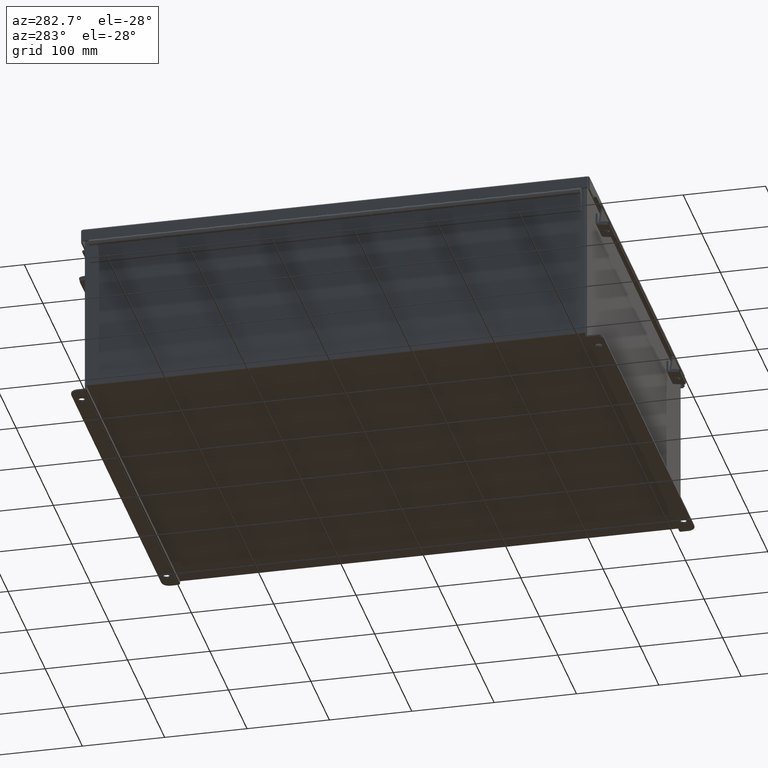
[diagram: clean part render]
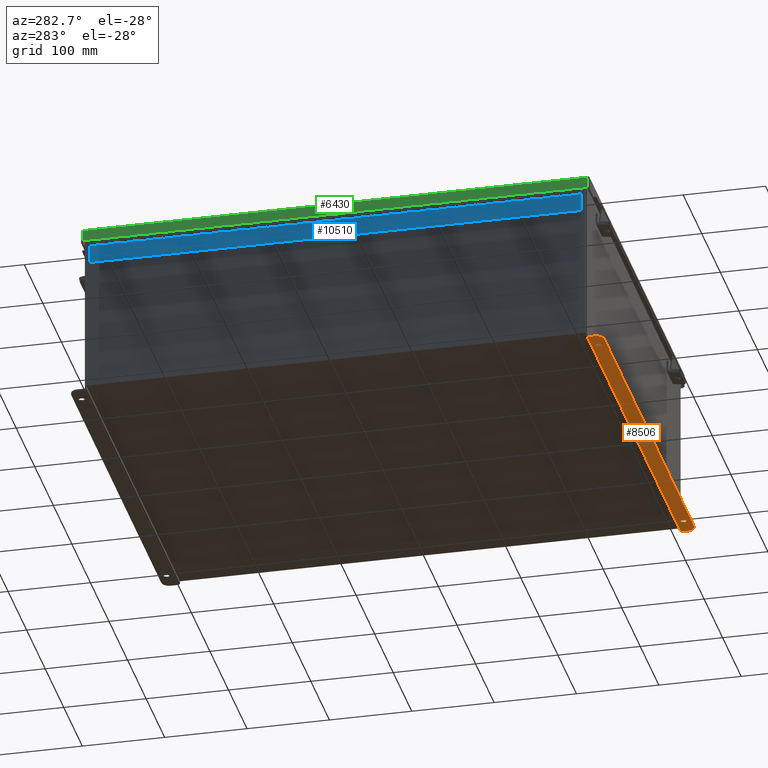
[diagram: same view with three faces highlighted in distinct colors, each labeled with its STEP entity id]
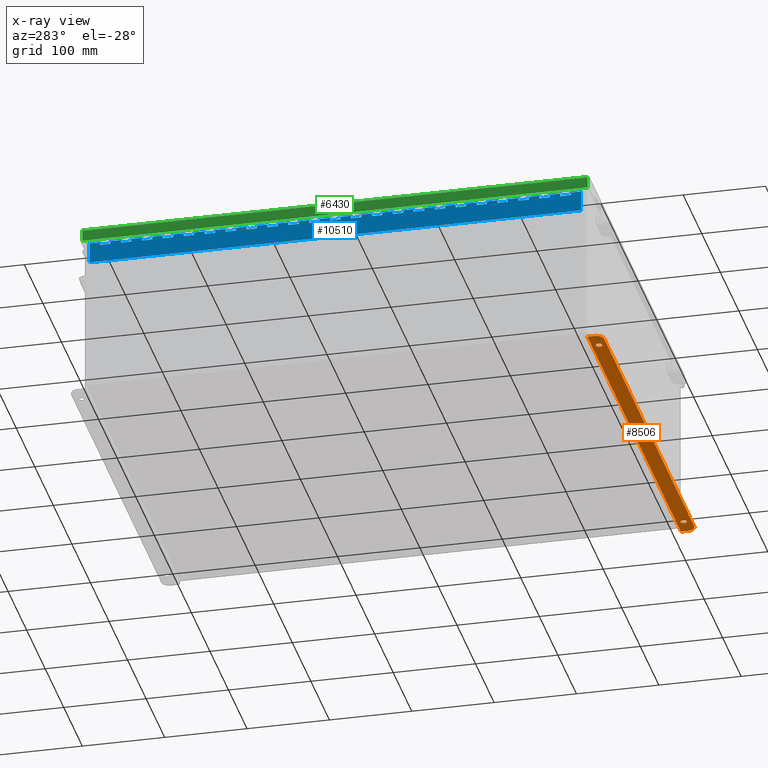
[diagram: x-ray of the same camera — body ghosted, the three highlighted faces saturated]
A machine part, auxiliary view with three faces highlighted in distinct colors.
The next image is the same camera in x-ray (body ghosted, the three faces saturated) — at least one of them is partly hidden behind the body in this view.
Their STEP definitions:

[orange] entity #8506 — the highlighted planar face has unit normal (0, -0, 1).
#118 = VECTOR ( 'NONE', #17948, 39.37007874015748100 ) ;
#189 = CARTESIAN_POINT ( 'NONE',  ( -9.550300000000007100, 0.7377999999999989000, -4.186999999999998500 ) ) ;
#629 = VERTEX_POINT ( 'NONE', #22476 ) ;
#994 = DIRECTION ( 'NONE',  ( 0.0000000000000000000, -3.362274453740631800E-015, -1.000000000000000000 ) ) ;
#1051 = AXIS2_PLACEMENT_3D ( 'NONE', #24578, #13099, #1658 ) ;
#1520 = DIRECTION ( 'NONE',  ( 1.000000000000000000, 4.910036603141682400E-031, 0.0000000000000000000 ) ) ;
#1525 = VERTEX_POINT ( 'NONE', #22303 ) ;
#1574 = CARTESIAN_POINT ( 'NONE',  ( -8.987800000000007100, 0.5187999999999988200, -4.186999999999996700 ) ) ;
#1658 = DIRECTION ( 'NONE',  ( 0.0000000000000000000, 1.000000000000000000, -3.502369222646487000E-015 ) ) ;
#1694 = CARTESIAN_POINT ( 'NONE',  ( 9.925300000000016000, 0.01300000000001759100, -4.186999999999995800 ) ) ;
#1799 = VERTEX_POINT ( 'NONE', #23204 ) ;
#2008 = CIRCLE ( 'NONE', #9922, 0.3750000000000000600 ) ;
#3502 = ORIENTED_EDGE ( 'NONE', *, *, #11942, .T. ) ;
#3604 = DIRECTION ( 'NONE',  ( 0.0000000000000000000, 3.702694488566362300E-015, 1.000000000000000000 ) ) ;
#3632 = ORIENTED_EDGE ( 'NONE', *, *, #8782, .F. ) ;
#3660 = EDGE_CURVE ( 'NONE', #7199, #16107, #10274, .T. ) ;
#4545 = LINE ( 'NONE', #18672, #24306 ) ;
#4837 = ORIENTED_EDGE ( 'NONE', *, *, #3660, .T. ) ;
#4852 = EDGE_LOOP ( 'NONE', ( #4837, #3502, #18221, #16772, #20733, #17059 ) ) ;
#5370 = DIRECTION ( 'NONE',  ( 0.0000000000000000000, -3.362274453740631800E-015, -1.000000000000000000 ) ) ;
#5377 = AXIS2_PLACEMENT_3D ( 'NONE', #12424, #994, #14355 ) ;
#6099 = EDGE_CURVE ( 'NONE', #8963, #19427, #24618, .T. ) ;
#6263 = FACE_OUTER_BOUND ( 'NONE', #4852, .T. ) ;
#6365 = EDGE_CURVE ( 'NONE', #11147, #9657, #4545, .T. ) ;
#6746 = CARTESIAN_POINT ( 'NONE',  ( -9.550300000000007100, 0.3628000000000008400, -4.187000000000001200 ) ) ;
#7124 = AXIS2_PLACEMENT_3D ( 'NONE', #15026, #3604, #16923 ) ;
#7199 = VERTEX_POINT ( 'NONE', #13363 ) ;
#7779 = EDGE_CURVE ( 'NONE', #7199, #9657, #12306, .T. ) ;
#8506 = ADVANCED_FACE ( 'NONE', ( #17028, #11363, #6263 ), #9249, .F. ) ;
#8671 = DIRECTION ( 'NONE',  ( 0.0000000000000000000, -1.000000000000000000, 4.370956789862820400E-015 ) ) ;
#8782 = EDGE_CURVE ( 'NONE', #19427, #8963, #10452, .T. ) ;
#8963 = VERTEX_POINT ( 'NONE', #1574 ) ;
#8992 = ORIENTED_EDGE ( 'NONE', *, *, #24775, .F. ) ;
#9249 = PLANE ( 'NONE',  #7124 ) ;
#9371 = AXIS2_PLACEMENT_3D ( 'NONE', #21163, #9690, #23114 ) ;
#9657 = VERTEX_POINT ( 'NONE', #1694 ) ;
#9690 = DIRECTION ( 'NONE',  ( -0.0000000000000000000, -3.702694488566362300E-015, -1.000000000000000000 ) ) ;
#9729 = CARTESIAN_POINT ( 'NONE',  ( 9.925300000000016000, 0.01300000000001759100, -4.186999999999995800 ) ) ;
#9774 = CARTESIAN_POINT ( 'NONE',  ( 9.925300000000033800, 0.3628000000000161700, -4.187000000000001200 ) ) ;
#9922 = AXIS2_PLACEMENT_3D ( 'NONE', #6746, #20152, #8671 ) ;
#10129 = EDGE_CURVE ( 'NONE', #1525, #1799, #24183, .T. ) ;
#10130 = VECTOR ( 'NONE', #1520, 39.37007874015748100 ) ;
#10230 = DIRECTION ( 'NONE',  ( 0.0000000000000000000, -3.362274453740631800E-015, -1.000000000000000000 ) ) ;
#10274 = LINE ( 'NONE', #14775, #118 ) ;
#10452 = CIRCLE ( 'NONE', #5377, 0.1560000000000001900 ) ;
#10850 = CIRCLE ( 'NONE', #1051, 0.1560000000000001900 ) ;
#10904 = CARTESIAN_POINT ( 'NONE',  ( -8.987800000000007100, 0.2067999999999984900, -4.186999999999995800 ) ) ;
#11023 = CIRCLE ( 'NONE', #9371, 0.3750000000000000600 ) ;
#11147 = VERTEX_POINT ( 'NONE', #9774 ) ;
#11363 = FACE_BOUND ( 'NONE', #17682, .T. ) ;
#11657 = DIRECTION ( 'NONE',  ( 1.000000000000000000, 2.752408485047608900E-017, -0.0000000000000000000 ) ) ;
#11942 = EDGE_CURVE ( 'NONE', #16107, #18335, #2008, .T. ) ;
#12306 = LINE ( 'NONE', #9729, #20696 ) ;
#12424 = CARTESIAN_POINT ( 'NONE',  ( -8.987800000000007100, 0.3627999999999986800, -4.186999999999996700 ) ) ;
#13099 = DIRECTION ( 'NONE',  ( 0.0000000000000000000, -3.362274453740631800E-015, -1.000000000000000000 ) ) ;
#13363 = CARTESIAN_POINT ( 'NONE',  ( -9.925299999999978700, 0.01300000000000010700, -4.187000000000000300 ) ) ;
#14010 = LINE ( 'NONE', #14889, #10130 ) ;
#14355 = DIRECTION ( 'NONE',  ( 0.0000000000000000000, 1.000000000000000000, -3.502369222646487000E-015 ) ) ;
#14536 = AXIS2_PLACEMENT_3D ( 'NONE', #16813, #5370, #18751 ) ;
#14765 = ORIENTED_EDGE ( 'NONE', *, *, #6099, .F. ) ;
#14775 = CARTESIAN_POINT ( 'NONE',  ( -9.925299999999980500, -1.529834876451987200E-014, -4.187000000000000300 ) ) ;
#14889 = CARTESIAN_POINT ( 'NONE',  ( -2.035385365534024800E-024, 0.7378000000000011200, -4.186999999999998500 ) ) ;
#15026 = CARTESIAN_POINT ( 'NONE',  ( -2.035385365534024800E-024, -1.529834876451987200E-014, -4.187000000000000300 ) ) ;
#15343 = EDGE_CURVE ( 'NONE', #18335, #629, #14010, .T. ) ;
#15525 = EDGE_CURVE ( 'NONE', #629, #11147, #11023, .T. ) ;
#16060 = CARTESIAN_POINT ( 'NONE',  ( -9.925299999999962700, 0.3628000000000008400, -4.186999999999996700 ) ) ;
#16107 = VERTEX_POINT ( 'NONE', #16060 ) ;
#16772 = ORIENTED_EDGE ( 'NONE', *, *, #15525, .T. ) ;
#16813 = CARTESIAN_POINT ( 'NONE',  ( 8.987799999999989400, 0.3628000000000161700, -4.187000000000001200 ) ) ;
#16923 = DIRECTION ( 'NONE',  ( -4.919856193148104900E-031, -1.000000000000000000, 3.702694488566362300E-015 ) ) ;
#17028 = FACE_BOUND ( 'NONE', #17804, .T. ) ;
#17059 = ORIENTED_EDGE ( 'NONE', *, *, #7779, .F. ) ;
#17682 = EDGE_LOOP ( 'NONE', ( #22636, #8992 ) ) ;
#17804 = EDGE_LOOP ( 'NONE', ( #14765, #3632 ) ) ;
#17948 = DIRECTION ( 'NONE',  ( 4.919856193148104900E-031, 1.000000000000000000, -3.702694488566362300E-015 ) ) ;
#18221 = ORIENTED_EDGE ( 'NONE', *, *, #15343, .T. ) ;
#18335 = VERTEX_POINT ( 'NONE', #189 ) ;
#18672 = CARTESIAN_POINT ( 'NONE',  ( 9.925300000000016000, 2.185478394931410600E-015, -4.186999999999995800 ) ) ;
#18751 = DIRECTION ( 'NONE',  ( 0.0000000000000000000, 1.000000000000000000, -3.502369222646487000E-015 ) ) ;
#19427 = VERTEX_POINT ( 'NONE', #10904 ) ;
#20152 = DIRECTION ( 'NONE',  ( -0.0000000000000000000, -3.702694488566362300E-015, -1.000000000000000000 ) ) ;
#20322 = AXIS2_PLACEMENT_3D ( 'NONE', #21698, #10230, #23639 ) ;
#20593 = DIRECTION ( 'NONE',  ( -4.919856193148104900E-031, -1.000000000000000000, 3.702694488566362300E-015 ) ) ;
#20696 = VECTOR ( 'NONE', #11657, 39.37007874015748100 ) ;
#20733 = ORIENTED_EDGE ( 'NONE', *, *, #6365, .T. ) ;
#21163 = CARTESIAN_POINT ( 'NONE',  ( 9.550299999999989400, 0.3628000000000161700, -4.186999999999996700 ) ) ;
#21698 = CARTESIAN_POINT ( 'NONE',  ( -8.987800000000007100, 0.3627999999999986800, -4.186999999999996700 ) ) ;
#22303 = CARTESIAN_POINT ( 'NONE',  ( 8.987799999999989400, 0.5188000000000163600, -4.187000000000001200 ) ) ;
#22476 = CARTESIAN_POINT ( 'NONE',  ( 9.550299999999989400, 0.7378000000000163300, -4.187000000000002900 ) ) ;
#22636 = ORIENTED_EDGE ( 'NONE', *, *, #10129, .F. ) ;
#23114 = DIRECTION ( 'NONE',  ( 0.0000000000000000000, -1.000000000000000000, 4.370956789862820400E-015 ) ) ;
#23204 = CARTESIAN_POINT ( 'NONE',  ( 8.987799999999989400, 0.2068000000000159700, -4.187000000000000300 ) ) ;
#23639 = DIRECTION ( 'NONE',  ( 0.0000000000000000000, 1.000000000000000000, -3.502369222646487000E-015 ) ) ;
#24183 = CIRCLE ( 'NONE', #14536, 0.1560000000000001900 ) ;
#24306 = VECTOR ( 'NONE', #20593, 39.37007874015748100 ) ;
#24578 = CARTESIAN_POINT ( 'NONE',  ( 8.987799999999989400, 0.3628000000000161700, -4.187000000000001200 ) ) ;
#24618 = CIRCLE ( 'NONE', #20322, 0.1560000000000001900 ) ;
#24775 = EDGE_CURVE ( 'NONE', #1799, #1525, #10850, .T. ) ;

[blue] entity #10510 — the highlighted planar face has unit normal (1, -0, 0).
#54 = DIRECTION ( 'NONE',  ( 0.0000000000000000000, 1.000000000000000000, 0.0000000000000000000 ) ) ;
#134 = EDGE_CURVE ( 'NONE', #12660, #11856, #4264, .T. ) ;
#149 = VECTOR ( 'NONE', #7906, 39.37007874015748100 ) ;
#170 = VECTOR ( 'NONE', #10263, 39.37007874015748100 ) ;
#183 = ORIENTED_EDGE ( 'NONE', *, *, #16149, .F. ) ;
#188 = ORIENTED_EDGE ( 'NONE', *, *, #14413, .T. ) ;
#235 = DIRECTION ( 'NONE',  ( 0.0000000000000000000, 1.000000000000000000, 0.0000000000000000000 ) ) ;
#283 = VERTEX_POINT ( 'NONE', #8461 ) ;
#290 = CARTESIAN_POINT ( 'NONE',  ( 0.1365000000000000100, 2.499999999999991600, -1.707404996040164500E-017 ) ) ;
#299 = LINE ( 'NONE', #23967, #2454 ) ;
#329 = CARTESIAN_POINT ( 'NONE',  ( 0.1365000000000000100, 18.49999999999999300, -1.707404996040164500E-017 ) ) ;
#350 = LINE ( 'NONE', #6559, #4826 ) ;
#351 = EDGE_CURVE ( 'NONE', #10944, #760, #18589, .T. ) ;
#372 = EDGE_CURVE ( 'NONE', #6875, #16080, #14104, .T. ) ;
#389 = ORIENTED_EDGE ( 'NONE', *, *, #1550, .F. ) ;
#407 = ORIENTED_EDGE ( 'NONE', *, *, #12795, .F. ) ;
#412 = DIRECTION ( 'NONE',  ( 0.0000000000000000000, 1.000000000000000000, 0.0000000000000000000 ) ) ;
#416 = LINE ( 'NONE', #4928, #5483 ) ;
#420 = ORIENTED_EDGE ( 'NONE', *, *, #15865, .T. ) ;
#484 = VERTEX_POINT ( 'NONE', #5151 ) ;
#564 = CARTESIAN_POINT ( 'NONE',  ( 0.0000000000000000000, 22.49999999999999300, 0.0000000000000000000 ) ) ;
#573 = EDGE_CURVE ( 'NONE', #19456, #14673, #3640, .T. ) ;
#734 = CARTESIAN_POINT ( 'NONE',  ( 0.2730000000000000200, 11.49999999999999300, 0.0000000000000000000 ) ) ;
#760 = VERTEX_POINT ( 'NONE', #15836 ) ;
#783 = ORIENTED_EDGE ( 'NONE', *, *, #3518, .F. ) ;
#796 = CARTESIAN_POINT ( 'NONE',  ( 0.2730000000000000200, 4.499999999999992000, 0.0000000000000000000 ) ) ;
#811 = VECTOR ( 'NONE', #19052, 39.37007874015748100 ) ;
#840 = VECTOR ( 'NONE', #13584, 39.37007874015748100 ) ;
#858 = CARTESIAN_POINT ( 'NONE',  ( 1.136499999999999800, 23.50000000000000000, 0.0000000000000000000 ) ) ;
#902 = VECTOR ( 'NONE', #18023, 39.37007874015748100 ) ;
#1018 = ORIENTED_EDGE ( 'NONE', *, *, #18442, .T. ) ;
#1045 = CARTESIAN_POINT ( 'NONE',  ( 0.0000000000000000000, 11.49999999999999300, 0.0000000000000000000 ) ) ;
#1067 = CARTESIAN_POINT ( 'NONE',  ( 0.1365000000000000100, 4.999999999999993800, -1.707404996040164500E-017 ) ) ;
#1077 = DIRECTION ( 'NONE',  ( -1.000000000000000000, 0.0000000000000000000, 0.0000000000000000000 ) ) ;
#1086 = EDGE_CURVE ( 'NONE', #4730, #7738, #12785, .T. ) ;
#1109 = CARTESIAN_POINT ( 'NONE',  ( 0.1365000000000000100, 3.999999999999994700, -1.707404996040164500E-017 ) ) ;
#1166 = EDGE_CURVE ( 'NONE', #12760, #11141, #16654, .T. ) ;
#1180 = CARTESIAN_POINT ( 'NONE',  ( 0.0000000000000000000, 7.999999999999993800, 0.0000000000000000000 ) ) ;
#1189 = DIRECTION ( 'NONE',  ( 0.0000000000000000000, 1.000000000000000000, 0.0000000000000000000 ) ) ;
#1299 = ORIENTED_EDGE ( 'NONE', *, *, #7630, .F. ) ;
#1304 = DIRECTION ( 'NONE',  ( -1.000000000000000000, 0.0000000000000000000, 0.0000000000000000000 ) ) ;
#1330 = EDGE_CURVE ( 'NONE', #19254, #5675, #22684, .T. ) ;
#1348 = EDGE_CURVE ( 'NONE', #14480, #12324, #7366, .T. ) ;
#1442 = CARTESIAN_POINT ( 'NONE',  ( 0.1365000000000000100, 12.99999999999999300, -1.707404996040164500E-017 ) ) ;
#1479 = CARTESIAN_POINT ( 'NONE',  ( 0.1365000000000000100, 0.0000000000000000000, -1.707404996040164500E-017 ) ) ;
#1488 = ORIENTED_EDGE ( 'NONE', *, *, #12897, .F. ) ;
#1490 = CARTESIAN_POINT ( 'NONE',  ( 0.1365000000000000100, 13.49999999999999100, -1.707404996040164500E-017 ) ) ;
#1505 = VERTEX_POINT ( 'NONE', #20194 ) ;
#1550 = EDGE_CURVE ( 'NONE', #23110, #24249, #18440, .T. ) ;
#1605 = LINE ( 'NONE', #2775, #20744 ) ;
#1668 = EDGE_CURVE ( 'NONE', #13301, #17515, #5866, .T. ) ;
#1721 = CARTESIAN_POINT ( 'NONE',  ( 0.2730000000000000200, -20.00000000000000000, 0.0000000000000000000 ) ) ;
#1750 = EDGE_CURVE ( 'NONE', #21383, #5001, #19937, .T. ) ;
#1758 = ORIENTED_EDGE ( 'NONE', *, *, #4076, .F. ) ;
#1766 = CARTESIAN_POINT ( 'NONE',  ( 0.2730000000000000200, 22.49999999999999300, 0.0000000000000000000 ) ) ;
#1855 = VERTEX_POINT ( 'NONE', #13564 ) ;
#1875 = LINE ( 'NONE', #8787, #6314 ) ;
#1905 = VECTOR ( 'NONE', #24479, 39.37007874015748100 ) ;
#1993 = CARTESIAN_POINT ( 'NONE',  ( 0.2730000000000000200, 5.999999999999994700, 0.0000000000000000000 ) ) ;
#2006 = DIRECTION ( 'NONE',  ( 0.0000000000000000000, 1.000000000000000000, 0.0000000000000000000 ) ) ;
#2028 = EDGE_CURVE ( 'NONE', #21184, #8811, #4378, .T. ) ;
#2054 = EDGE_CURVE ( 'NONE', #7663, #23130, #14537, .T. ) ;
#2090 = VERTEX_POINT ( 'NONE', #10789 ) ;
#2153 = CARTESIAN_POINT ( 'NONE',  ( 0.2730000000000000200, 12.49999999999999100, 0.0000000000000000000 ) ) ;
#2185 = CARTESIAN_POINT ( 'NONE',  ( 0.1365000000000000100, 22.99999999999999300, -1.707404996040164500E-017 ) ) ;
#2209 = CARTESIAN_POINT ( 'NONE',  ( 0.2730000000000000200, 0.4999999999999930100, 0.0000000000000000000 ) ) ;
#2268 = CARTESIAN_POINT ( 'NONE',  ( 0.2730000000000000200, -14.00000000000000000, 0.0000000000000000000 ) ) ;
#2289 = LINE ( 'NONE', #11392, #21999 ) ;
#2295 = VECTOR ( 'NONE', #12924, 39.37007874015748100 ) ;
#2308 = DIRECTION ( 'NONE',  ( -1.000000000000000000, 0.0000000000000000000, 0.0000000000000000000 ) ) ;
#2335 = CARTESIAN_POINT ( 'NONE',  ( 0.2730000000000000200, 8.499999999999992900, 0.0000000000000000000 ) ) ;
#2344 = VECTOR ( 'NONE', #3988, 39.37007874015748100 ) ;
#2395 = VECTOR ( 'NONE', #2983, 39.37007874015748100 ) ;
#2401 = VECTOR ( 'NONE', #14553, 39.37007874015748100 ) ;
#2454 = VECTOR ( 'NONE', #6780, 39.37007874015748100 ) ;
#2462 = DIRECTION ( 'NONE',  ( 0.0000000000000000000, 1.000000000000000000, 0.0000000000000000000 ) ) ;
#2480 = VERTEX_POINT ( 'NONE', #15696 ) ;
#2548 = VECTOR ( 'NONE', #7052, 39.37007874015748100 ) ;
#2584 = LINE ( 'NONE', #9025, #22304 ) ;
#2592 = DIRECTION ( 'NONE',  ( 0.0000000000000000000, 1.000000000000000000, 0.0000000000000000000 ) ) ;
#2602 = DIRECTION ( 'NONE',  ( -1.000000000000000000, 0.0000000000000000000, 0.0000000000000000000 ) ) ;
#2611 = VERTEX_POINT ( 'NONE', #19646 ) ;
#2775 = CARTESIAN_POINT ( 'NONE',  ( 0.0000000000000000000, 9.999999999999994700, 0.0000000000000000000 ) ) ;
#2822 = DIRECTION ( 'NONE',  ( 0.0000000000000000000, 1.000000000000000000, 0.0000000000000000000 ) ) ;
#2835 = EDGE_CURVE ( 'NONE', #2611, #14480, #11813, .T. ) ;
#2907 = ORIENTED_EDGE ( 'NONE', *, *, #12942, .F. ) ;
#2915 = CARTESIAN_POINT ( 'NONE',  ( 0.1365000000000000100, 0.0000000000000000000, -1.707404996040164500E-017 ) ) ;
#2919 = CARTESIAN_POINT ( 'NONE',  ( 0.1365000000000000100, 6.999999999999993800, -1.707404996040164500E-017 ) ) ;
#2940 = CARTESIAN_POINT ( 'NONE',  ( 0.1365000000000000100, 23.50000000000000000, -1.707404996040164500E-017 ) ) ;
#2951 = LINE ( 'NONE', #19994, #12485 ) ;
#2977 = DIRECTION ( 'NONE',  ( -1.000000000000000000, 0.0000000000000000000, 0.0000000000000000000 ) ) ;
#2983 = DIRECTION ( 'NONE',  ( -1.000000000000000000, 0.0000000000000000000, 0.0000000000000000000 ) ) ;
#3000 = ORIENTED_EDGE ( 'NONE', *, *, #21195, .F. ) ;
#3018 = DIRECTION ( 'NONE',  ( 0.0000000000000000000, 1.000000000000000000, 0.0000000000000000000 ) ) ;
#3026 = DIRECTION ( 'NONE',  ( 0.0000000000000000000, 1.000000000000000000, 0.0000000000000000000 ) ) ;
#3105 = ORIENTED_EDGE ( 'NONE', *, *, #3938, .F. ) ;
#3140 = LINE ( 'NONE', #5056, #8175 ) ;
#3143 = EDGE_CURVE ( 'NONE', #5837, #6875, #10891, .T. ) ;
#3266 = LINE ( 'NONE', #13593, #12804 ) ;
#3291 = ORIENTED_EDGE ( 'NONE', *, *, #5502, .F. ) ;
#3293 = CARTESIAN_POINT ( 'NONE',  ( 0.2730000000000000200, -9.000000000000000000, 0.0000000000000000000 ) ) ;
#3323 = VECTOR ( 'NONE', #4020, 39.37007874015748100 ) ;
#3344 = CARTESIAN_POINT ( 'NONE',  ( 0.1365000000000000100, 21.99999999999999600, -1.707404996040164500E-017 ) ) ;
#3397 = CARTESIAN_POINT ( 'NONE',  ( 0.2730000000000000200, -13.00000000000000000, 0.0000000000000000000 ) ) ;
#3414 = ORIENTED_EDGE ( 'NONE', *, *, #8632, .F. ) ;
#3518 = EDGE_CURVE ( 'NONE', #10944, #11763, #18350, .T. ) ;
#3582 = EDGE_CURVE ( 'NONE', #17988, #10501, #12671, .T. ) ;
#3640 = LINE ( 'NONE', #10080, #23973 ) ;
#3646 = EDGE_CURVE ( 'NONE', #14721, #5293, #15356, .T. ) ;
#3714 = VERTEX_POINT ( 'NONE', #20864 ) ;
#3731 = VECTOR ( 'NONE', #4418, 39.37007874015748100 ) ;
#3787 = LINE ( 'NONE', #564, #13347 ) ;
#3801 = LINE ( 'NONE', #2268, #8836 ) ;
#3815 = VECTOR ( 'NONE', #9863, 39.37007874015748100 ) ;
#3816 = DIRECTION ( 'NONE',  ( -1.000000000000000000, 0.0000000000000000000, 0.0000000000000000000 ) ) ;
#3824 = LINE ( 'NONE', #15298, #24165 ) ;
#3842 = EDGE_CURVE ( 'NONE', #4730, #7805, #7255, .T. ) ;
#3853 = DIRECTION ( 'NONE',  ( 0.0000000000000000000, 1.000000000000000000, 0.0000000000000000000 ) ) ;
#3867 = VECTOR ( 'NONE', #18668, 39.37007874015748100 ) ;
#3876 = EDGE_CURVE ( 'NONE', #283, #4434, #12968, .T. ) ;
#3938 = EDGE_CURVE ( 'NONE', #24249, #484, #9962, .T. ) ;
#3988 = DIRECTION ( 'NONE',  ( -1.000000000000000000, 0.0000000000000000000, 0.0000000000000000000 ) ) ;
#4020 = DIRECTION ( 'NONE',  ( -1.000000000000000000, 0.0000000000000000000, 0.0000000000000000000 ) ) ;
#4052 = LINE ( 'NONE', #21384, #23783 ) ;
#4056 = CARTESIAN_POINT ( 'NONE',  ( 0.1365000000000000100, 0.0000000000000000000, -1.707404996040164500E-017 ) ) ;
#4076 = EDGE_CURVE ( 'NONE', #8453, #11856, #11448, .T. ) ;
#4091 = CARTESIAN_POINT ( 'NONE',  ( 0.2730000000000000200, -16.00000000000000000, 0.0000000000000000000 ) ) ;
#4097 = ORIENTED_EDGE ( 'NONE', *, *, #2054, .F. ) ;
#4109 = CARTESIAN_POINT ( 'NONE',  ( 0.0000000000000000000, 1.999999999999994000, 0.0000000000000000000 ) ) ;
#4112 = VECTOR ( 'NONE', #21663, 39.37007874015748100 ) ;
#4171 = EDGE_CURVE ( 'NONE', #10430, #7663, #4355, .T. ) ;
#4175 = DIRECTION ( 'NONE',  ( 0.0000000000000000000, 1.000000000000000000, 0.0000000000000000000 ) ) ;
#4184 = VECTOR ( 'NONE', #14175, 39.37007874015748100 ) ;
#4264 = LINE ( 'NONE', #18736, #7504 ) ;
#4282 = EDGE_CURVE ( 'NONE', #11712, #11141, #2584, .T. ) ;
#4333 = VERTEX_POINT ( 'NONE', #1442 ) ;
#4355 = LINE ( 'NONE', #12890, #24108 ) ;
#4378 = LINE ( 'NONE', #16584, #9434 ) ;
#4418 = DIRECTION ( 'NONE',  ( 0.0000000000000000000, 1.000000000000000000, 0.0000000000000000000 ) ) ;
#4434 = VERTEX_POINT ( 'NONE', #23095 ) ;
#4439 = ORIENTED_EDGE ( 'NONE', *, *, #1086, .F. ) ;
#4537 = ORIENTED_EDGE ( 'NONE', *, *, #11509, .F. ) ;
#4567 = VERTEX_POINT ( 'NONE', #20887 ) ;
#4570 = CARTESIAN_POINT ( 'NONE',  ( 0.1365000000000000100, 0.0000000000000000000, -1.707404996040164500E-017 ) ) ;
#4648 = LINE ( 'NONE', #20276, #9121 ) ;
#4687 = PLANE ( 'NONE',  #8450 ) ;
#4730 = VERTEX_POINT ( 'NONE', #22074 ) ;
#4818 = CARTESIAN_POINT ( 'NONE',  ( 0.2730000000000000200, 14.99999999999999500, 0.0000000000000000000 ) ) ;
#4822 = EDGE_CURVE ( 'NONE', #8669, #5001, #19867, .T. ) ;
#4826 = VECTOR ( 'NONE', #21900, 39.37007874015748100 ) ;
#4906 = LINE ( 'NONE', #4056, #9991 ) ;
#4928 = CARTESIAN_POINT ( 'NONE',  ( 1.136500000000000100, 0.0000000000000000000, 0.0000000000000000000 ) ) ;
#4962 = ORIENTED_EDGE ( 'NONE', *, *, #9331, .F. ) ;
#4977 = DIRECTION ( 'NONE',  ( -1.000000000000000000, 0.0000000000000000000, 0.0000000000000000000 ) ) ;
#5001 = VERTEX_POINT ( 'NONE', #2940 ) ;
#5056 = CARTESIAN_POINT ( 'NONE',  ( 0.0000000000000000000, 8.499999999999992900, 0.0000000000000000000 ) ) ;
#5141 = VECTOR ( 'NONE', #22288, 39.37007874015748100 ) ;
#5151 = CARTESIAN_POINT ( 'NONE',  ( 0.1365000000000000100, 11.99999999999999500, -1.707404996040164500E-017 ) ) ;
#5157 = DIRECTION ( 'NONE',  ( -1.000000000000000000, 0.0000000000000000000, 0.0000000000000000000 ) ) ;
#5158 = DIRECTION ( 'NONE',  ( -1.000000000000000000, 0.0000000000000000000, 0.0000000000000000000 ) ) ;
#5175 = CARTESIAN_POINT ( 'NONE',  ( 0.2730000000000000200, 18.49999999999999300, 0.0000000000000000000 ) ) ;
#5177 = LINE ( 'NONE', #7545, #9649 ) ;
#5186 = ORIENTED_EDGE ( 'NONE', *, *, #5337, .F. ) ;
#5206 = VECTOR ( 'NONE', #24597, 39.37007874015748100 ) ;
#5210 = VERTEX_POINT ( 'NONE', #1490 ) ;
#5235 = VERTEX_POINT ( 'NONE', #13846 ) ;
#5244 = EDGE_CURVE ( 'NONE', #8048, #8523, #6962, .T. ) ;
#5250 = LINE ( 'NONE', #8322, #170 ) ;
#5291 = LINE ( 'NONE', #21492, #19942 ) ;
#5293 = VERTEX_POINT ( 'NONE', #20103 ) ;
#5296 = VERTEX_POINT ( 'NONE', #6055 ) ;
#5318 = EDGE_CURVE ( 'NONE', #283, #17515, #24355, .T. ) ;
#5326 = DIRECTION ( 'NONE',  ( -1.000000000000000000, 0.0000000000000000000, 0.0000000000000000000 ) ) ;
#5329 = CARTESIAN_POINT ( 'NONE',  ( 0.0000000000000000000, 21.99999999999999600, 0.0000000000000000000 ) ) ;
#5337 = EDGE_CURVE ( 'NONE', #24243, #5675, #18645, .T. ) ;
#5357 = ORIENTED_EDGE ( 'NONE', *, *, #4822, .F. ) ;
#5390 = CARTESIAN_POINT ( 'NONE',  ( 0.2730000000000000200, 21.49999999999999300, 0.0000000000000000000 ) ) ;
#5395 = CARTESIAN_POINT ( 'NONE',  ( 0.2730000000000000200, 14.49999999999999300, 0.0000000000000000000 ) ) ;
#5483 = VECTOR ( 'NONE', #24007, 39.37007874015748100 ) ;
#5502 = EDGE_CURVE ( 'NONE', #6425, #8453, #1605, .T. ) ;
#5522 = VERTEX_POINT ( 'NONE', #23826 ) ;
#5563 = VECTOR ( 'NONE', #24422, 39.37007874015748100 ) ;
#5569 = ORIENTED_EDGE ( 'NONE', *, *, #7061, .T. ) ;
#5572 = CARTESIAN_POINT ( 'NONE',  ( 0.2730000000000000200, 18.99999999999999300, 0.0000000000000000000 ) ) ;
#5594 = EDGE_CURVE ( 'NONE', #10430, #18033, #9342, .T. ) ;
#5615 = ORIENTED_EDGE ( 'NONE', *, *, #24093, .F. ) ;
#5673 = VECTOR ( 'NONE', #235, 39.37007874015748100 ) ;
#5675 = VERTEX_POINT ( 'NONE', #20472 ) ;
#5686 = ORIENTED_EDGE ( 'NONE', *, *, #5318, .T. ) ;
#5757 = VECTOR ( 'NONE', #11318, 39.37007874015748100 ) ;
#5798 = CARTESIAN_POINT ( 'NONE',  ( 0.2730000000000000200, 2.499999999999991600, 0.0000000000000000000 ) ) ;
#5804 = CARTESIAN_POINT ( 'NONE',  ( 0.2730000000000000200, -10.00000000000000000, 0.0000000000000000000 ) ) ;
#5837 = VERTEX_POINT ( 'NONE', #22831 ) ;
#5866 = LINE ( 'NONE', #19399, #811 ) ;
#5892 = VECTOR ( 'NONE', #2602, 39.37007874015748100 ) ;
#5948 = DIRECTION ( 'NONE',  ( -1.000000000000000000, 0.0000000000000000000, 0.0000000000000000000 ) ) ;
#6029 = VERTEX_POINT ( 'NONE', #2335 ) ;
#6055 = CARTESIAN_POINT ( 'NONE',  ( 0.1364999999999999000, 0.0000000000000000000, 0.0000000000000000000 ) ) ;
#6077 = CARTESIAN_POINT ( 'NONE',  ( 0.0000000000000000000, 19.49999999999999300, 0.0000000000000000000 ) ) ;
#6205 = CARTESIAN_POINT ( 'NONE',  ( 0.1365000000000000100, 0.0000000000000000000, -1.707404996040164500E-017 ) ) ;
#6261 = EDGE_CURVE ( 'NONE', #2480, #8669, #1875, .T. ) ;
#6308 = EDGE_CURVE ( 'NONE', #8523, #13269, #15892, .T. ) ;
#6314 = VECTOR ( 'NONE', #24126, 39.37007874015748100 ) ;
#6340 = CARTESIAN_POINT ( 'NONE',  ( 0.0000000000000000000, 18.49999999999999300, 0.0000000000000000000 ) ) ;
#6425 = VERTEX_POINT ( 'NONE', #9370 ) ;
#6426 = CARTESIAN_POINT ( 'NONE',  ( 0.1365000000000000100, 10.49999999999999300, -1.707404996040164500E-017 ) ) ;
#6439 = CARTESIAN_POINT ( 'NONE',  ( 0.1365000000000000100, 14.49999999999999300, -1.707404996040164500E-017 ) ) ;
#6511 = ORIENTED_EDGE ( 'NONE', *, *, #5594, .T. ) ;
#6531 = VECTOR ( 'NONE', #9986, 39.37007874015748100 ) ;
#6559 = CARTESIAN_POINT ( 'NONE',  ( 0.2730000000000000200, -11.99999999999999800, 0.0000000000000000000 ) ) ;
#6593 = DIRECTION ( 'NONE',  ( -1.000000000000000000, 0.0000000000000000000, -0.0000000000000000000 ) ) ;
#6623 = VERTEX_POINT ( 'NONE', #17638 ) ;
#6646 = CARTESIAN_POINT ( 'NONE',  ( 0.2730000000000000200, -22.00000000000000000, 0.0000000000000000000 ) ) ;
#6674 = CARTESIAN_POINT ( 'NONE',  ( 0.2730000000000000200, 10.99999999999999500, 0.0000000000000000000 ) ) ;
#6703 = EDGE_CURVE ( 'NONE', #11550, #19060, #12594, .T. ) ;
#6705 = VECTOR ( 'NONE', #2308, 39.37007874015748100 ) ;
#6723 = VERTEX_POINT ( 'NONE', #21675 ) ;
#6780 = DIRECTION ( 'NONE',  ( -1.000000000000000000, 0.0000000000000000000, 0.0000000000000000000 ) ) ;
#6875 = VERTEX_POINT ( 'NONE', #18212 ) ;
#6879 = VECTOR ( 'NONE', #8259, 39.37007874015748100 ) ;
#6884 = VECTOR ( 'NONE', #21860, 39.37007874015748100 ) ;
#6905 = EDGE_CURVE ( 'NONE', #484, #9589, #12282, .T. ) ;
#6962 = LINE ( 'NONE', #4091, #8168 ) ;
#7004 = ORIENTED_EDGE ( 'NONE', *, *, #12781, .F. ) ;
#7049 = CARTESIAN_POINT ( 'NONE',  ( 1.136500000000000100, 23.50000000000000000, 0.0000000000000000000 ) ) ;
#7052 = DIRECTION ( 'NONE',  ( 0.0000000000000000000, 1.000000000000000000, 0.0000000000000000000 ) ) ;
#7061 = EDGE_CURVE ( 'NONE', #8630, #8726, #14964, .T. ) ;
#7071 = VECTOR ( 'NONE', #19148, 39.37007874015748100 ) ;
#7078 = VECTOR ( 'NONE', #15933, 39.37007874015748100 ) ;
#7147 = LINE ( 'NONE', #16170, #902 ) ;
#7176 = VECTOR ( 'NONE', #3026, 39.37007874015748100 ) ;
#7203 = LINE ( 'NONE', #11487, #12917 ) ;
#7255 = LINE ( 'NONE', #15848, #16828 ) ;
#7260 = EDGE_CURVE ( 'NONE', #5293, #14157, #15841, .T. ) ;
#7317 = LINE ( 'NONE', #1479, #2295 ) ;
#7327 = ORIENTED_EDGE ( 'NONE', *, *, #10678, .F. ) ;
#7366 = LINE ( 'NONE', #19262, #11867 ) ;
#7496 = ORIENTED_EDGE ( 'NONE', *, *, #18543, .T. ) ;
#7499 = EDGE_CURVE ( 'NONE', #4434, #3714, #7147, .T. ) ;
#7504 = VECTOR ( 'NONE', #22794, 39.37007874015748100 ) ;
#7535 = EDGE_CURVE ( 'NONE', #4333, #5210, #15543, .T. ) ;
#7545 = CARTESIAN_POINT ( 'NONE',  ( 0.0000000000000000000, 10.99999999999999500, 0.0000000000000000000 ) ) ;
#7559 = EDGE_CURVE ( 'NONE', #17988, #18279, #299, .T. ) ;
#7630 = EDGE_CURVE ( 'NONE', #11739, #11712, #24309, .T. ) ;
#7633 = CARTESIAN_POINT ( 'NONE',  ( 0.2730000000000000200, 15.99999999999999500, 0.0000000000000000000 ) ) ;
#7663 = VERTEX_POINT ( 'NONE', #12828 ) ;
#7721 = EDGE_CURVE ( 'NONE', #13697, #7805, #7203, .T. ) ;
#7738 = VERTEX_POINT ( 'NONE', #1993 ) ;
#7765 = DIRECTION ( 'NONE',  ( 0.0000000000000000000, 1.000000000000000000, 0.0000000000000000000 ) ) ;
#7805 = VERTEX_POINT ( 'NONE', #17426 ) ;
#7831 = EDGE_CURVE ( 'NONE', #8630, #11739, #19486, .T. ) ;
#7877 = VECTOR ( 'NONE', #15789, 39.37007874015748100 ) ;
#7906 = DIRECTION ( 'NONE',  ( 0.0000000000000000000, 1.000000000000000000, 0.0000000000000000000 ) ) ;
#7955 = VECTOR ( 'NONE', #16039, 39.37007874015748100 ) ;
#8009 = EDGE_CURVE ( 'NONE', #15862, #9589, #15869, .T. ) ;
#8030 = CARTESIAN_POINT ( 'NONE',  ( 0.1365000000000000100, 7.499999999999992000, -1.707404996040164500E-017 ) ) ;
#8048 = VERTEX_POINT ( 'NONE', #18159 ) ;
#8055 = CARTESIAN_POINT ( 'NONE',  ( 0.1365000000000000100, 15.49999999999999300, -1.707404996040164500E-017 ) ) ;
#8145 = CARTESIAN_POINT ( 'NONE',  ( 0.1365000000000000100, 22.49999999999999300, -1.707404996040164500E-017 ) ) ;
#8160 = ORIENTED_EDGE ( 'NONE', *, *, #8009, .T. ) ;
#8168 = VECTOR ( 'NONE', #2006, 39.37007874015748100 ) ;
#8175 = VECTOR ( 'NONE', #18420, 39.37007874015748100 ) ;
#8181 = CARTESIAN_POINT ( 'NONE',  ( 0.0000000000000000000, 3.499999999999992900, 0.0000000000000000000 ) ) ;
#8237 = EDGE_CURVE ( 'NONE', #19254, #6425, #15568, .T. ) ;
#8259 = DIRECTION ( 'NONE',  ( -1.000000000000000000, 0.0000000000000000000, 0.0000000000000000000 ) ) ;
#8322 = CARTESIAN_POINT ( 'NONE',  ( 0.1365000000000000100, 0.0000000000000000000, -1.707404996040164500E-017 ) ) ;
#8326 = ORIENTED_EDGE ( 'NONE', *, *, #21986, .F. ) ;
#8346 = ORIENTED_EDGE ( 'NONE', *, *, #4282, .F. ) ;
#8361 = LINE ( 'NONE', #23090, #3323 ) ;
#8389 = DIRECTION ( 'NONE',  ( -1.000000000000000000, 0.0000000000000000000, 0.0000000000000000000 ) ) ;
#8450 = AXIS2_PLACEMENT_3D ( 'NONE', #858, #18068, #6593 ) ;
#8453 = VERTEX_POINT ( 'NONE', #14870 ) ;
#8461 = CARTESIAN_POINT ( 'NONE',  ( 0.2730000000000000200, 19.49999999999999300, 0.0000000000000000000 ) ) ;
#8523 = VERTEX_POINT ( 'NONE', #13195 ) ;
#8572 = EDGE_CURVE ( 'NONE', #21184, #16080, #9568, .T. ) ;
#8601 = ORIENTED_EDGE ( 'NONE', *, *, #1668, .F. ) ;
#8624 = LINE ( 'NONE', #16151, #23335 ) ;
#8630 = VERTEX_POINT ( 'NONE', #17262 ) ;
#8632 = EDGE_CURVE ( 'NONE', #8811, #11093, #8361, .T. ) ;
#8669 = VERTEX_POINT ( 'NONE', #2185 ) ;
#8726 = VERTEX_POINT ( 'NONE', #8055 ) ;
#8731 = CARTESIAN_POINT ( 'NONE',  ( 0.2730000000000000200, 7.999999999999993800, 0.0000000000000000000 ) ) ;
#8739 = VECTOR ( 'NONE', #1077, 39.37007874015748100 ) ;
#8748 = CARTESIAN_POINT ( 'NONE',  ( 0.1365000000000000100, 0.0000000000000000000, -1.707404996040164500E-017 ) ) ;
#8773 = VECTOR ( 'NONE', #19409, 39.37007874015748100 ) ;
#8787 = CARTESIAN_POINT ( 'NONE',  ( 0.0000000000000000000, 22.99999999999999300, 0.0000000000000000000 ) ) ;
#8811 = VERTEX_POINT ( 'NONE', #4818 ) ;
#8836 = VECTOR ( 'NONE', #4175, 39.37007874015748100 ) ;
#8840 = VERTEX_POINT ( 'NONE', #20203 ) ;
#8866 = VERTEX_POINT ( 'NONE', #8731 ) ;
#8901 = LINE ( 'NONE', #20589, #3867 ) ;
#9025 = CARTESIAN_POINT ( 'NONE',  ( 0.1365000000000000100, 0.0000000000000000000, -1.707404996040164500E-017 ) ) ;
#9053 = VECTOR ( 'NONE', #17710, 39.37007874015748100 ) ;
#9079 = CARTESIAN_POINT ( 'NONE',  ( 0.1365000000000000100, 7.999999999999993800, -1.707404996040164500E-017 ) ) ;
#9115 = EDGE_CURVE ( 'NONE', #15862, #24746, #23641, .T. ) ;
#9116 = ORIENTED_EDGE ( 'NONE', *, *, #351, .T. ) ;
#9121 = VECTOR ( 'NONE', #18354, 39.37007874015748100 ) ;
#9186 = ORIENTED_EDGE ( 'NONE', *, *, #12974, .F. ) ;
#9191 = EDGE_CURVE ( 'NONE', #10501, #13697, #11638, .T. ) ;
#9271 = VECTOR ( 'NONE', #5326, 39.37007874015748100 ) ;
#9331 = EDGE_CURVE ( 'NONE', #13269, #14184, #14922, .T. ) ;
#9342 = LINE ( 'NONE', #14440, #8739 ) ;
#9352 = VECTOR ( 'NONE', #14598, 39.37007874015748100 ) ;
#9370 = CARTESIAN_POINT ( 'NONE',  ( 0.2730000000000000200, 9.999999999999994700, 0.0000000000000000000 ) ) ;
#9374 = EDGE_CURVE ( 'NONE', #14439, #18279, #8624, .T. ) ;
#9379 = LINE ( 'NONE', #17490, #8773 ) ;
#9410 = EDGE_CURVE ( 'NONE', #23110, #19851, #17605, .T. ) ;
#9434 = VECTOR ( 'NONE', #12396, 39.37007874015748100 ) ;
#9492 = CARTESIAN_POINT ( 'NONE',  ( 0.0000000000000000000, 14.49999999999999300, 0.0000000000000000000 ) ) ;
#9523 = CARTESIAN_POINT ( 'NONE',  ( 0.2730000000000000200, -11.00000000000000000, 0.0000000000000000000 ) ) ;
#9568 = LINE ( 'NONE', #9492, #19741 ) ;
#9585 = CARTESIAN_POINT ( 'NONE',  ( 0.0000000000000000000, 0.4999999999999930100, 0.0000000000000000000 ) ) ;
#9589 = VERTEX_POINT ( 'NONE', #16634 ) ;
#9594 = EDGE_CURVE ( 'NONE', #19797, #5210, #8901, .T. ) ;
#9649 = VECTOR ( 'NONE', #11400, 39.37007874015748100 ) ;
#9663 = CARTESIAN_POINT ( 'NONE',  ( 0.2730000000000000200, 0.9999999999999947800, 0.0000000000000000000 ) ) ;
#9696 = LINE ( 'NONE', #19368, #149 ) ;
#9794 = EDGE_CURVE ( 'NONE', #15507, #19060, #14904, .T. ) ;
#9811 = VECTOR ( 'NONE', #11994, 39.37007874015748100 ) ;
#9863 = DIRECTION ( 'NONE',  ( 0.0000000000000000000, 1.000000000000000000, 0.0000000000000000000 ) ) ;
#9898 = EDGE_CURVE ( 'NONE', #3714, #18033, #23886, .T. ) ;
#9962 = LINE ( 'NONE', #14116, #19531 ) ;
#9986 = DIRECTION ( 'NONE',  ( -1.000000000000000000, 0.0000000000000000000, 0.0000000000000000000 ) ) ;
#9991 = VECTOR ( 'NONE', #7765, 39.37007874015748100 ) ;
#10080 = CARTESIAN_POINT ( 'NONE',  ( 0.2730000000000000200, -1.000000000000000000, 0.0000000000000000000 ) ) ;
#10171 = CARTESIAN_POINT ( 'NONE',  ( 0.1365000000000000100, 14.99999999999999500, -1.707404996040164500E-017 ) ) ;
#10224 = CARTESIAN_POINT ( 'NONE',  ( 0.2730000000000000200, 13.49999999999999100, 0.0000000000000000000 ) ) ;
#10263 = DIRECTION ( 'NONE',  ( 0.0000000000000000000, 1.000000000000000000, 0.0000000000000000000 ) ) ;
#10295 = EDGE_CURVE ( 'NONE', #19612, #14157, #16068, .T. ) ;
#10383 = CARTESIAN_POINT ( 'NONE',  ( 0.0000000000000000000, 12.49999999999999100, 0.0000000000000000000 ) ) ;
#10407 = DIRECTION ( 'NONE',  ( -1.000000000000000000, 0.0000000000000000000, 0.0000000000000000000 ) ) ;
#10411 = DIRECTION ( 'NONE',  ( 0.0000000000000000000, 1.000000000000000000, 0.0000000000000000000 ) ) ;
#10430 = VERTEX_POINT ( 'NONE', #17807 ) ;
#10450 = VECTOR ( 'NONE', #18096, 39.37007874015748100 ) ;
#10458 = CARTESIAN_POINT ( 'NONE',  ( 0.1365000000000000100, 11.49999999999999300, -1.707404996040164500E-017 ) ) ;
#10480 = VECTOR ( 'NONE', #22548, 39.37007874015748100 ) ;
#10501 = VERTEX_POINT ( 'NONE', #23778 ) ;
#10510 = ADVANCED_FACE ( 'NONE', ( #20854 ), #4687, .F. ) ;
#10519 = ORIENTED_EDGE ( 'NONE', *, *, #3646, .F. ) ;
#10615 = ORIENTED_EDGE ( 'NONE', *, *, #8237, .F. ) ;
#10632 = VECTOR ( 'NONE', #412, 39.37007874015748100 ) ;
#10678 = EDGE_CURVE ( 'NONE', #19797, #5837, #12762, .T. ) ;
#10724 = CARTESIAN_POINT ( 'NONE',  ( 0.1365000000000000100, 0.0000000000000000000, -1.707404996040164500E-017 ) ) ;
#10742 = CARTESIAN_POINT ( 'NONE',  ( 0.0000000000000000000, 12.99999999999999300, 0.0000000000000000000 ) ) ;
#10779 = DIRECTION ( 'NONE',  ( 0.0000000000000000000, 1.000000000000000000, 0.0000000000000000000 ) ) ;
#10782 = CARTESIAN_POINT ( 'NONE',  ( 0.1365000000000000100, 16.99999999999999300, -1.707404996040164500E-017 ) ) ;
#10789 = CARTESIAN_POINT ( 'NONE',  ( 0.1365000000000000100, 0.9999999999999947800, -1.707404996040164500E-017 ) ) ;
#10812 = VERTEX_POINT ( 'NONE', #1766 ) ;
#10821 = VECTOR ( 'NONE', #2977, 39.37007874015748100 ) ;
#10891 = LINE ( 'NONE', #15906, #20482 ) ;
#10894 = VECTOR ( 'NONE', #21147, 39.37007874015748100 ) ;
#10935 = CARTESIAN_POINT ( 'NONE',  ( 0.1365000000000000100, 8.999999999999994700, -1.707404996040164500E-017 ) ) ;
#10944 = VERTEX_POINT ( 'NONE', #2209 ) ;
#10961 = LINE ( 'NONE', #10742, #15453 ) ;
#11031 = EDGE_CURVE ( 'NONE', #11093, #8726, #21422, .T. ) ;
#11093 = VERTEX_POINT ( 'NONE', #10171 ) ;
#11099 = DIRECTION ( 'NONE',  ( -1.000000000000000000, 0.0000000000000000000, 0.0000000000000000000 ) ) ;
#11103 = ORIENTED_EDGE ( 'NONE', *, *, #21072, .T. ) ;
#11141 = VERTEX_POINT ( 'NONE', #17385 ) ;
#11184 = DIRECTION ( 'NONE',  ( 0.0000000000000000000, 1.000000000000000000, 0.0000000000000000000 ) ) ;
#11276 = ORIENTED_EDGE ( 'NONE', *, *, #22683, .F. ) ;
#11293 = ORIENTED_EDGE ( 'NONE', *, *, #17235, .T. ) ;
#11298 = ORIENTED_EDGE ( 'NONE', *, *, #24318, .F. ) ;
#11318 = DIRECTION ( 'NONE',  ( 0.0000000000000000000, 1.000000000000000000, 0.0000000000000000000 ) ) ;
#11332 = ORIENTED_EDGE ( 'NONE', *, *, #7535, .F. ) ;
#11392 = CARTESIAN_POINT ( 'NONE',  ( 0.0000000000000000000, 18.99999999999999300, 0.0000000000000000000 ) ) ;
#11400 = DIRECTION ( 'NONE',  ( -1.000000000000000000, 0.0000000000000000000, 0.0000000000000000000 ) ) ;
#11448 = LINE ( 'NONE', #15161, #1905 ) ;
#11487 = CARTESIAN_POINT ( 'NONE',  ( 0.1365000000000000100, 0.0000000000000000000, -1.707404996040164500E-017 ) ) ;
#11496 = VECTOR ( 'NONE', #3853, 39.37007874015748100 ) ;
#11509 = EDGE_CURVE ( 'NONE', #24746, #4333, #10961, .T. ) ;
#11516 = CARTESIAN_POINT ( 'NONE',  ( 0.0000000000000000000, 8.999999999999994700, 0.0000000000000000000 ) ) ;
#11539 = EDGE_CURVE ( 'NONE', #19672, #8866, #14865, .T. ) ;
#11543 = ORIENTED_EDGE ( 'NONE', *, *, #15199, .F. ) ;
#11550 = VERTEX_POINT ( 'NONE', #5175 ) ;
#11553 = ORIENTED_EDGE ( 'NONE', *, *, #134, .T. ) ;
#11570 = VERTEX_POINT ( 'NONE', #9079 ) ;
#11625 = ORIENTED_EDGE ( 'NONE', *, *, #10295, .T. ) ;
#11637 = CARTESIAN_POINT ( 'NONE',  ( 0.0000000000000000000, 2.499999999999991600, 0.0000000000000000000 ) ) ;
#11638 = LINE ( 'NONE', #23389, #6531 ) ;
#11647 = CARTESIAN_POINT ( 'NONE',  ( 0.0000000000000000000, 16.49999999999999300, 0.0000000000000000000 ) ) ;
#11676 = CARTESIAN_POINT ( 'NONE',  ( 0.1365000000000000100, 0.0000000000000000000, -1.707404996040164500E-017 ) ) ;
#11712 = VERTEX_POINT ( 'NONE', #22916 ) ;
#11739 = VERTEX_POINT ( 'NONE', #7633 ) ;
#11752 = ORIENTED_EDGE ( 'NONE', *, *, #24120, .F. ) ;
#11763 = VERTEX_POINT ( 'NONE', #9663 ) ;
#11766 = VECTOR ( 'NONE', #22577, 39.37007874015748100 ) ;
#11781 = ORIENTED_EDGE ( 'NONE', *, *, #7831, .F. ) ;
#11813 = LINE ( 'NONE', #12813, #6705 ) ;
#11832 = EDGE_CURVE ( 'NONE', #6029, #1505, #3801, .T. ) ;
#11856 = VERTEX_POINT ( 'NONE', #6426 ) ;
#11867 = VECTOR ( 'NONE', #17156, 39.37007874015748100 ) ;
#11916 = ORIENTED_EDGE ( 'NONE', *, *, #6703, .T. ) ;
#11949 = CARTESIAN_POINT ( 'NONE',  ( 0.0000000000000000000, 21.49999999999999300, 0.0000000000000000000 ) ) ;
#11994 = DIRECTION ( 'NONE',  ( 0.0000000000000000000, 1.000000000000000000, 0.0000000000000000000 ) ) ;
#11996 = LINE ( 'NONE', #12676, #16458 ) ;
#12000 = VERTEX_POINT ( 'NONE', #24101 ) ;
#12035 = ORIENTED_EDGE ( 'NONE', *, *, #17501, .F. ) ;
#12042 = ORIENTED_EDGE ( 'NONE', *, *, #13307, .T. ) ;
#12106 = CARTESIAN_POINT ( 'NONE',  ( 0.1365000000000000100, 0.0000000000000000000, -1.707404996040164500E-017 ) ) ;
#12115 = CARTESIAN_POINT ( 'NONE',  ( 0.0000000000000000000, 23.50000000000000000, 0.0000000000000000000 ) ) ;
#12157 = CARTESIAN_POINT ( 'NONE',  ( 0.1365000000000000100, 0.0000000000000000000, -1.707404996040164500E-017 ) ) ;
#12216 = ORIENTED_EDGE ( 'NONE', *, *, #18209, .F. ) ;
#12266 = DIRECTION ( 'NONE',  ( -1.000000000000000000, 0.0000000000000000000, 0.0000000000000000000 ) ) ;
#12282 = LINE ( 'NONE', #8748, #7176 ) ;
#12312 = CARTESIAN_POINT ( 'NONE',  ( 0.1365000000000000100, 20.49999999999999300, -1.707404996040164500E-017 ) ) ;
#12324 = VERTEX_POINT ( 'NONE', #13459 ) ;
#12346 = CARTESIAN_POINT ( 'NONE',  ( 0.2730000000000000200, -18.00000000000000000, 0.0000000000000000000 ) ) ;
#12396 = DIRECTION ( 'NONE',  ( 0.0000000000000000000, 1.000000000000000000, 0.0000000000000000000 ) ) ;
#12485 = VECTOR ( 'NONE', #23785, 39.37007874015748100 ) ;
#12510 = EDGE_CURVE ( 'NONE', #1855, #19851, #5250, .T. ) ;
#12594 = LINE ( 'NONE', #6340, #6879 ) ;
#12596 = ORIENTED_EDGE ( 'NONE', *, *, #4171, .F. ) ;
#12639 = ORIENTED_EDGE ( 'NONE', *, *, #11031, .F. ) ;
#12660 = VERTEX_POINT ( 'NONE', #18370 ) ;
#12671 = LINE ( 'NONE', #12346, #2548 ) ;
#12676 = CARTESIAN_POINT ( 'NONE',  ( 0.0000000000000000000, 0.0000000000000000000, 0.0000000000000000000 ) ) ;
#12760 = VERTEX_POINT ( 'NONE', #16775 ) ;
#12762 = LINE ( 'NONE', #3293, #17840 ) ;
#12776 = LINE ( 'NONE', #17214, #7071 ) ;
#12781 = EDGE_CURVE ( 'NONE', #4567, #14439, #14496, .T. ) ;
#12785 = LINE ( 'NONE', #19080, #7078 ) ;
#12795 = EDGE_CURVE ( 'NONE', #8840, #14721, #18981, .T. ) ;
#12804 = VECTOR ( 'NONE', #5948, 39.37007874015748100 ) ;
#12813 = CARTESIAN_POINT ( 'NONE',  ( 0.0000000000000000000, 16.99999999999999300, 0.0000000000000000000 ) ) ;
#12828 = CARTESIAN_POINT ( 'NONE',  ( 0.2730000000000000200, 20.99999999999999600, 0.0000000000000000000 ) ) ;
#12845 = CARTESIAN_POINT ( 'NONE',  ( 0.0000000000000000000, 20.99999999999999600, 0.0000000000000000000 ) ) ;
#12868 = VERTEX_POINT ( 'NONE', #5572 ) ;
#12890 = CARTESIAN_POINT ( 'NONE',  ( 0.2730000000000000200, -2.000000000000000000, 0.0000000000000000000 ) ) ;
#12897 = EDGE_CURVE ( 'NONE', #10812, #2480, #21686, .T. ) ;
#12917 = VECTOR ( 'NONE', #54, 39.37007874015748100 ) ;
#12924 = DIRECTION ( 'NONE',  ( 0.0000000000000000000, 1.000000000000000000, 0.0000000000000000000 ) ) ;
#12942 = EDGE_CURVE ( 'NONE', #1505, #24243, #16565, .T. ) ;
#12944 = CARTESIAN_POINT ( 'NONE',  ( 0.0000000000000000000, 15.49999999999999300, 0.0000000000000000000 ) ) ;
#12968 = LINE ( 'NONE', #17242, #11766 ) ;
#12974 = EDGE_CURVE ( 'NONE', #5522, #4567, #9696, .T. ) ;
#13006 = CARTESIAN_POINT ( 'NONE',  ( 0.1365000000000000100, 3.499999999999992900, -1.707404996040164500E-017 ) ) ;
#13015 = EDGE_CURVE ( 'NONE', #19672, #14184, #4052, .T. ) ;
#13068 = VERTEX_POINT ( 'NONE', #8145 ) ;
#13071 = ORIENTED_EDGE ( 'NONE', *, *, #3842, .T. ) ;
#13091 = ORIENTED_EDGE ( 'NONE', *, *, #12510, .F. ) ;
#13102 = VECTOR ( 'NONE', #2592, 39.37007874015748100 ) ;
#13195 = CARTESIAN_POINT ( 'NONE',  ( 0.2730000000000000200, 6.999999999999993800, 0.0000000000000000000 ) ) ;
#13269 = VERTEX_POINT ( 'NONE', #2919 ) ;
#13301 = VERTEX_POINT ( 'NONE', #22213 ) ;
#13307 = EDGE_CURVE ( 'NONE', #6029, #12000, #3140, .T. ) ;
#13347 = VECTOR ( 'NONE', #13938, 39.37007874015748100 ) ;
#13451 = VECTOR ( 'NONE', #21128, 39.37007874015748100 ) ;
#13459 = CARTESIAN_POINT ( 'NONE',  ( 0.1365000000000000100, 17.49999999999999300, -1.707404996040164500E-017 ) ) ;
#13468 = ORIENTED_EDGE ( 'NONE', *, *, #3876, .F. ) ;
#13516 = VECTOR ( 'NONE', #10407, 39.37007874015748100 ) ;
#13564 = CARTESIAN_POINT ( 'NONE',  ( 0.1365000000000000100, 10.99999999999999500, -1.707404996040164500E-017 ) ) ;
#13575 = VECTOR ( 'NONE', #3018, 39.37007874015748100 ) ;
#13584 = DIRECTION ( 'NONE',  ( -1.000000000000000000, 0.0000000000000000000, 0.0000000000000000000 ) ) ;
#13588 = ORIENTED_EDGE ( 'NONE', *, *, #9191, .F. ) ;
#13593 = CARTESIAN_POINT ( 'NONE',  ( 0.0000000000000000000, 1.499999999999992200, 0.0000000000000000000 ) ) ;
#13697 = VERTEX_POINT ( 'NONE', #1067 ) ;
#13757 = ORIENTED_EDGE ( 'NONE', *, *, #17349, .F. ) ;
#13770 = DIRECTION ( 'NONE',  ( -1.000000000000000000, 0.0000000000000000000, 0.0000000000000000000 ) ) ;
#13785 = CARTESIAN_POINT ( 'NONE',  ( 0.1365000000000000100, 0.0000000000000000000, -1.707404996040164500E-017 ) ) ;
#13786 = EDGE_CURVE ( 'NONE', #20638, #13790, #19540, .T. ) ;
#13790 = VERTEX_POINT ( 'NONE', #16496 ) ;
#13846 = CARTESIAN_POINT ( 'NONE',  ( 0.2730000000000000200, 17.99999999999999300, 0.0000000000000000000 ) ) ;
#13860 = CARTESIAN_POINT ( 'NONE',  ( 0.0000000000000000000, 9.499999999999992900, 0.0000000000000000000 ) ) ;
#13938 = DIRECTION ( 'NONE',  ( -1.000000000000000000, 0.0000000000000000000, 0.0000000000000000000 ) ) ;
#13943 = VECTOR ( 'NONE', #5158, 39.37007874015748100 ) ;
#13962 = EDGE_CURVE ( 'NONE', #19612, #20638, #21042, .T. ) ;
#13980 = EDGE_CURVE ( 'NONE', #20433, #1855, #5177, .T. ) ;
#14104 = LINE ( 'NONE', #10724, #17983 ) ;
#14116 = CARTESIAN_POINT ( 'NONE',  ( 0.0000000000000000000, 11.99999999999999500, 0.0000000000000000000 ) ) ;
#14157 = VERTEX_POINT ( 'NONE', #290 ) ;
#14175 = DIRECTION ( 'NONE',  ( 0.0000000000000000000, 1.000000000000000000, 0.0000000000000000000 ) ) ;
#14184 = VERTEX_POINT ( 'NONE', #8030 ) ;
#14192 = CARTESIAN_POINT ( 'NONE',  ( 0.1365000000000000100, 20.99999999999999600, -1.707404996040164500E-017 ) ) ;
#14263 = VECTOR ( 'NONE', #20478, 39.37007874015748100 ) ;
#14315 = ORIENTED_EDGE ( 'NONE', *, *, #9594, .T. ) ;
#14397 = VECTOR ( 'NONE', #17509, 39.37007874015748100 ) ;
#14413 = EDGE_CURVE ( 'NONE', #8048, #22385, #21012, .T. ) ;
#14439 = VERTEX_POINT ( 'NONE', #1109 ) ;
#14440 = CARTESIAN_POINT ( 'NONE',  ( 0.0000000000000000000, 20.49999999999999300, 0.0000000000000000000 ) ) ;
#14480 = VERTEX_POINT ( 'NONE', #10782 ) ;
#14496 = LINE ( 'NONE', #24504, #19578 ) ;
#14537 = LINE ( 'NONE', #12845, #13943 ) ;
#14553 = DIRECTION ( 'NONE',  ( -1.000000000000000000, 0.0000000000000000000, 0.0000000000000000000 ) ) ;
#14562 = CARTESIAN_POINT ( 'NONE',  ( 0.2730000000000000200, -5.999999999999999100, 0.0000000000000000000 ) ) ;
#14597 = CARTESIAN_POINT ( 'NONE',  ( 0.1365000000000000100, 19.49999999999999300, -1.707404996040164500E-017 ) ) ;
#14598 = DIRECTION ( 'NONE',  ( -1.000000000000000000, 0.0000000000000000000, 0.0000000000000000000 ) ) ;
#14671 = CARTESIAN_POINT ( 'NONE',  ( 0.0000000000000000000, 15.99999999999999500, 0.0000000000000000000 ) ) ;
#14673 = VERTEX_POINT ( 'NONE', #24778 ) ;
#14721 = VERTEX_POINT ( 'NONE', #17203 ) ;
#14735 = ORIENTED_EDGE ( 'NONE', *, *, #7721, .F. ) ;
#14786 = VECTOR ( 'NONE', #17636, 39.37007874015748100 ) ;
#14865 = LINE ( 'NONE', #16592, #14263 ) ;
#14870 = CARTESIAN_POINT ( 'NONE',  ( 0.1365000000000000100, 9.999999999999994700, -1.707404996040164500E-017 ) ) ;
#14904 = LINE ( 'NONE', #6205, #9811 ) ;
#14922 = LINE ( 'NONE', #17917, #4184 ) ;
#14925 = DIRECTION ( 'NONE',  ( 0.0000000000000000000, 1.000000000000000000, 0.0000000000000000000 ) ) ;
#14964 = LINE ( 'NONE', #12944, #9271 ) ;
#15028 = ORIENTED_EDGE ( 'NONE', *, *, #1330, .T. ) ;
#15136 = LINE ( 'NONE', #5329, #5563 ) ;
#15161 = CARTESIAN_POINT ( 'NONE',  ( 0.1365000000000000100, 0.0000000000000000000, -1.707404996040164500E-017 ) ) ;
#15199 = EDGE_CURVE ( 'NONE', #8866, #11570, #16992, .T. ) ;
#15298 = CARTESIAN_POINT ( 'NONE',  ( 0.0000000000000000000, 17.49999999999999300, 0.0000000000000000000 ) ) ;
#15356 = LINE ( 'NONE', #4109, #20460 ) ;
#15375 = VECTOR ( 'NONE', #22839, 39.37007874015748100 ) ;
#15453 = VECTOR ( 'NONE', #22238, 39.37007874015748100 ) ;
#15507 = VERTEX_POINT ( 'NONE', #19129 ) ;
#15543 = LINE ( 'NONE', #2915, #10450 ) ;
#15568 = LINE ( 'NONE', #3397, #10480 ) ;
#15578 = CARTESIAN_POINT ( 'NONE',  ( 0.2730000000000000200, -7.000000000000000000, 0.0000000000000000000 ) ) ;
#15673 = ORIENTED_EDGE ( 'NONE', *, *, #9410, .T. ) ;
#15696 = CARTESIAN_POINT ( 'NONE',  ( 0.2730000000000000200, 22.99999999999999300, 0.0000000000000000000 ) ) ;
#15789 = DIRECTION ( 'NONE',  ( -1.000000000000000000, 0.0000000000000000000, 0.0000000000000000000 ) ) ;
#15836 = CARTESIAN_POINT ( 'NONE',  ( 0.1365000000000000100, 0.4999999999999930100, -1.707404996040164500E-017 ) ) ;
#15841 = LINE ( 'NONE', #11676, #5673 ) ;
#15848 = CARTESIAN_POINT ( 'NONE',  ( 0.0000000000000000000, 5.499999999999992900, 0.0000000000000000000 ) ) ;
#15862 = VERTEX_POINT ( 'NONE', #2153 ) ;
#15865 = EDGE_CURVE ( 'NONE', #8840, #6723, #3266, .T. ) ;
#15869 = LINE ( 'NONE', #10383, #6884 ) ;
#15892 = LINE ( 'NONE', #18496, #5141 ) ;
#15895 = VECTOR ( 'NONE', #1304, 39.37007874015748100 ) ;
#15906 = CARTESIAN_POINT ( 'NONE',  ( 0.0000000000000000000, 13.99999999999999300, 0.0000000000000000000 ) ) ;
#15933 = DIRECTION ( 'NONE',  ( 0.0000000000000000000, 1.000000000000000000, 0.0000000000000000000 ) ) ;
#15959 = LINE ( 'NONE', #22680, #5206 ) ;
#15963 = ORIENTED_EDGE ( 'NONE', *, *, #23498, .F. ) ;
#16039 = DIRECTION ( 'NONE',  ( 0.0000000000000000000, 1.000000000000000000, 0.0000000000000000000 ) ) ;
#16068 = LINE ( 'NONE', #11637, #840 ) ;
#16080 = VERTEX_POINT ( 'NONE', #6439 ) ;
#16149 = EDGE_CURVE ( 'NONE', #13790, #17591, #2951, .T. ) ;
#16151 = CARTESIAN_POINT ( 'NONE',  ( 0.1365000000000000100, 0.0000000000000000000, -1.707404996040164500E-017 ) ) ;
#16170 = CARTESIAN_POINT ( 'NONE',  ( 0.0000000000000000000, 19.99999999999999300, 0.0000000000000000000 ) ) ;
#16288 = ORIENTED_EDGE ( 'NONE', *, *, #22524, .F. ) ;
#16383 = EDGE_CURVE ( 'NONE', #5235, #15507, #12776, .T. ) ;
#16399 = ORIENTED_EDGE ( 'NONE', *, *, #7499, .F. ) ;
#16458 = VECTOR ( 'NONE', #24152, 39.37007874015748100 ) ;
#16496 = CARTESIAN_POINT ( 'NONE',  ( 0.1365000000000000100, 2.999999999999993300, -1.707404996040164500E-017 ) ) ;
#16565 = LINE ( 'NONE', #11516, #10894 ) ;
#16584 = CARTESIAN_POINT ( 'NONE',  ( 0.2730000000000000200, -8.000000000000000000, 0.0000000000000000000 ) ) ;
#16592 = CARTESIAN_POINT ( 'NONE',  ( 0.2730000000000000200, -15.00000000000000000, 0.0000000000000000000 ) ) ;
#16594 = VECTOR ( 'NONE', #10411, 39.37007874015748100 ) ;
#16634 = CARTESIAN_POINT ( 'NONE',  ( 0.1365000000000000100, 12.49999999999999100, -1.707404996040164500E-017 ) ) ;
#16654 = LINE ( 'NONE', #11647, #5892 ) ;
#16685 = ORIENTED_EDGE ( 'NONE', *, *, #8572, .T. ) ;
#16712 = DIRECTION ( 'NONE',  ( 0.0000000000000000000, 1.000000000000000000, 0.0000000000000000000 ) ) ;
#16754 = ORIENTED_EDGE ( 'NONE', *, *, #372, .F. ) ;
#16775 = CARTESIAN_POINT ( 'NONE',  ( 0.2730000000000000200, 16.49999999999999300, 0.0000000000000000000 ) ) ;
#16801 = CARTESIAN_POINT ( 'NONE',  ( 0.1365000000000000100, 4.499999999999992000, -1.707404996040164500E-017 ) ) ;
#16828 = VECTOR ( 'NONE', #5157, 39.37007874015748100 ) ;
#16832 = CARTESIAN_POINT ( 'NONE',  ( 0.1365000000000000100, 0.0000000000000000000, -1.707404996040164500E-017 ) ) ;
#16989 = ORIENTED_EDGE ( 'NONE', *, *, #20924, .F. ) ;
#16992 = LINE ( 'NONE', #1180, #2401 ) ;
#17114 = VERTEX_POINT ( 'NONE', #17373 ) ;
#17148 = ORIENTED_EDGE ( 'NONE', *, *, #17585, .F. ) ;
#17156 = DIRECTION ( 'NONE',  ( 0.0000000000000000000, 1.000000000000000000, 0.0000000000000000000 ) ) ;
#17203 = CARTESIAN_POINT ( 'NONE',  ( 0.2730000000000000200, 1.999999999999994000, 0.0000000000000000000 ) ) ;
#17214 = CARTESIAN_POINT ( 'NONE',  ( 0.0000000000000000000, 17.99999999999999300, 0.0000000000000000000 ) ) ;
#17235 = EDGE_CURVE ( 'NONE', #10812, #13068, #3787, .T. ) ;
#17242 = CARTESIAN_POINT ( 'NONE',  ( 0.2730000000000000200, -2.999999999999999600, 0.0000000000000000000 ) ) ;
#17262 = CARTESIAN_POINT ( 'NONE',  ( 0.2730000000000000200, 15.49999999999999300, 0.0000000000000000000 ) ) ;
#17349 = EDGE_CURVE ( 'NONE', #2090, #6723, #21716, .T. ) ;
#17350 = ORIENTED_EDGE ( 'NONE', *, *, #7559, .T. ) ;
#17373 = CARTESIAN_POINT ( 'NONE',  ( 0.1365000000000000100, 21.49999999999999300, -1.707404996040164500E-017 ) ) ;
#17385 = CARTESIAN_POINT ( 'NONE',  ( 0.1365000000000000100, 16.49999999999999300, -1.707404996040164500E-017 ) ) ;
#17426 = CARTESIAN_POINT ( 'NONE',  ( 0.1365000000000000100, 5.499999999999992900, -1.707404996040164500E-017 ) ) ;
#17429 = DIRECTION ( 'NONE',  ( -1.000000000000000000, 0.0000000000000000000, 0.0000000000000000000 ) ) ;
#17490 = CARTESIAN_POINT ( 'NONE',  ( 0.0000000000000000000, 5.999999999999994700, 0.0000000000000000000 ) ) ;
#17501 = EDGE_CURVE ( 'NONE', #18306, #22385, #4648, .T. ) ;
#17509 = DIRECTION ( 'NONE',  ( 0.0000000000000000000, 1.000000000000000000, 0.0000000000000000000 ) ) ;
#17515 = VERTEX_POINT ( 'NONE', #14597 ) ;
#17585 = EDGE_CURVE ( 'NONE', #11570, #12000, #7317, .T. ) ;
#17591 = VERTEX_POINT ( 'NONE', #13006 ) ;
#17605 = LINE ( 'NONE', #1045, #2395 ) ;
#17636 = DIRECTION ( 'NONE',  ( -1.000000000000000000, 0.0000000000000000000, 0.0000000000000000000 ) ) ;
#17638 = CARTESIAN_POINT ( 'NONE',  ( 0.2730000000000000200, 17.49999999999999300, 0.0000000000000000000 ) ) ;
#17710 = DIRECTION ( 'NONE',  ( -1.000000000000000000, 0.0000000000000000000, 0.0000000000000000000 ) ) ;
#17807 = CARTESIAN_POINT ( 'NONE',  ( 0.2730000000000000200, 20.49999999999999300, 0.0000000000000000000 ) ) ;
#17840 = VECTOR ( 'NONE', #24264, 39.37007874015748100 ) ;
#17917 = CARTESIAN_POINT ( 'NONE',  ( 0.1365000000000000100, 0.0000000000000000000, -1.707404996040164500E-017 ) ) ;
#17983 = VECTOR ( 'NONE', #21385, 39.37007874015748100 ) ;
#17988 = VERTEX_POINT ( 'NONE', #796 ) ;
#18023 = DIRECTION ( 'NONE',  ( -1.000000000000000000, 0.0000000000000000000, 0.0000000000000000000 ) ) ;
#18031 = CARTESIAN_POINT ( 'NONE',  ( 0.1365000000000000100, 0.0000000000000000000, -1.707404996040164500E-017 ) ) ;
#18033 = VERTEX_POINT ( 'NONE', #12312 ) ;
#18068 = DIRECTION ( 'NONE',  ( 0.0000000000000000000, 0.0000000000000000000, -1.000000000000000000 ) ) ;
#18096 = DIRECTION ( 'NONE',  ( 0.0000000000000000000, 1.000000000000000000, 0.0000000000000000000 ) ) ;
#18159 = CARTESIAN_POINT ( 'NONE',  ( 0.2730000000000000200, 6.499999999999992000, 0.0000000000000000000 ) ) ;
#18184 = ORIENTED_EDGE ( 'NONE', *, *, #1348, .F. ) ;
#18209 = EDGE_CURVE ( 'NONE', #6623, #5235, #24692, .T. ) ;
#18212 = CARTESIAN_POINT ( 'NONE',  ( 0.1365000000000000100, 13.99999999999999300, -1.707404996040164500E-017 ) ) ;
#18238 = CARTESIAN_POINT ( 'NONE',  ( 0.0000000000000000000, 6.499999999999992000, 0.0000000000000000000 ) ) ;
#18257 = ORIENTED_EDGE ( 'NONE', *, *, #13980, .F. ) ;
#18279 = VERTEX_POINT ( 'NONE', #16801 ) ;
#18306 = VERTEX_POINT ( 'NONE', #18905 ) ;
#18350 = LINE ( 'NONE', #6646, #3731 ) ;
#18354 = DIRECTION ( 'NONE',  ( 0.0000000000000000000, 1.000000000000000000, 0.0000000000000000000 ) ) ;
#18355 = CARTESIAN_POINT ( 'NONE',  ( 0.2730000000000000200, 12.99999999999999300, 0.0000000000000000000 ) ) ;
#18370 = CARTESIAN_POINT ( 'NONE',  ( 0.2730000000000000200, 10.49999999999999300, 0.0000000000000000000 ) ) ;
#18420 = DIRECTION ( 'NONE',  ( -1.000000000000000000, 0.0000000000000000000, 0.0000000000000000000 ) ) ;
#18426 = CARTESIAN_POINT ( 'NONE',  ( 0.0000000000000000000, 2.999999999999993300, 0.0000000000000000000 ) ) ;
#18440 = LINE ( 'NONE', #9523, #3815 ) ;
#18442 = EDGE_CURVE ( 'NONE', #19456, #17114, #20476, .T. ) ;
#18481 = DIRECTION ( 'NONE',  ( 0.0000000000000000000, 1.000000000000000000, 0.0000000000000000000 ) ) ;
#18496 = CARTESIAN_POINT ( 'NONE',  ( 0.0000000000000000000, 6.999999999999993800, 0.0000000000000000000 ) ) ;
#18507 = ORIENTED_EDGE ( 'NONE', *, *, #13015, .T. ) ;
#18543 = EDGE_CURVE ( 'NONE', #5522, #17591, #18667, .T. ) ;
#18551 = CARTESIAN_POINT ( 'NONE',  ( 0.2730000000000000200, 11.99999999999999500, 0.0000000000000000000 ) ) ;
#18579 = CARTESIAN_POINT ( 'NONE',  ( 0.2730000000000000200, -5.000000000000000000, 0.0000000000000000000 ) ) ;
#18589 = LINE ( 'NONE', #9585, #13516 ) ;
#18610 = ORIENTED_EDGE ( 'NONE', *, *, #13786, .F. ) ;
#18645 = LINE ( 'NONE', #12106, #13575 ) ;
#18667 = LINE ( 'NONE', #8181, #7877 ) ;
#18668 = DIRECTION ( 'NONE',  ( -1.000000000000000000, 0.0000000000000000000, 0.0000000000000000000 ) ) ;
#18677 = EDGE_CURVE ( 'NONE', #23914, #21383, #416, .T. ) ;
#18736 = CARTESIAN_POINT ( 'NONE',  ( 0.0000000000000000000, 10.49999999999999300, 0.0000000000000000000 ) ) ;
#18743 = CARTESIAN_POINT ( 'NONE',  ( 1.136500000000000100, 0.0000000000000000000, 0.0000000000000000000 ) ) ;
#18840 = DIRECTION ( 'NONE',  ( 0.0000000000000000000, 1.000000000000000000, 0.0000000000000000000 ) ) ;
#18905 = CARTESIAN_POINT ( 'NONE',  ( 0.1365000000000000100, 5.999999999999994700, -1.707404996040164500E-017 ) ) ;
#18922 = ORIENTED_EDGE ( 'NONE', *, *, #13962, .F. ) ;
#18981 = LINE ( 'NONE', #20732, #23503 ) ;
#19052 = DIRECTION ( 'NONE',  ( 0.0000000000000000000, 1.000000000000000000, 0.0000000000000000000 ) ) ;
#19060 = VERTEX_POINT ( 'NONE', #329 ) ;
#19080 = CARTESIAN_POINT ( 'NONE',  ( 0.2730000000000000200, -17.00000000000000000, 0.0000000000000000000 ) ) ;
#19129 = CARTESIAN_POINT ( 'NONE',  ( 0.1365000000000000100, 17.99999999999999300, -1.707404996040164500E-017 ) ) ;
#19148 = DIRECTION ( 'NONE',  ( -1.000000000000000000, 0.0000000000000000000, 0.0000000000000000000 ) ) ;
#19159 = ORIENTED_EDGE ( 'NONE', *, *, #22261, .T. ) ;
#19254 = VERTEX_POINT ( 'NONE', #21893 ) ;
#19262 = CARTESIAN_POINT ( 'NONE',  ( 0.1365000000000000100, 0.0000000000000000000, -1.707404996040164500E-017 ) ) ;
#19368 = CARTESIAN_POINT ( 'NONE',  ( 0.2730000000000000200, -19.00000000000000000, 0.0000000000000000000 ) ) ;
#19399 = CARTESIAN_POINT ( 'NONE',  ( 0.1365000000000000100, 0.0000000000000000000, -1.707404996040164500E-017 ) ) ;
#19409 = DIRECTION ( 'NONE',  ( -1.000000000000000000, 0.0000000000000000000, 0.0000000000000000000 ) ) ;
#19431 = VERTEX_POINT ( 'NONE', #3344 ) ;
#19456 = VERTEX_POINT ( 'NONE', #5390 ) ;
#19486 = LINE ( 'NONE', #15578, #14397 ) ;
#19531 = VECTOR ( 'NONE', #8389, 39.37007874015748100 ) ;
#19540 = LINE ( 'NONE', #18426, #9352 ) ;
#19571 = VECTOR ( 'NONE', #16712, 39.37007874015748100 ) ;
#19578 = VECTOR ( 'NONE', #11099, 39.37007874015748100 ) ;
#19612 = VERTEX_POINT ( 'NONE', #5798 ) ;
#19646 = CARTESIAN_POINT ( 'NONE',  ( 0.2730000000000000200, 16.99999999999999300, 0.0000000000000000000 ) ) ;
#19672 = VERTEX_POINT ( 'NONE', #23231 ) ;
#19681 = ORIENTED_EDGE ( 'NONE', *, *, #2835, .F. ) ;
#19741 = VECTOR ( 'NONE', #22920, 39.37007874015748100 ) ;
#19769 = LINE ( 'NONE', #16832, #24281 ) ;
#19797 = VERTEX_POINT ( 'NONE', #10224 ) ;
#19851 = VERTEX_POINT ( 'NONE', #10458 ) ;
#19867 = LINE ( 'NONE', #4570, #15375 ) ;
#19937 = LINE ( 'NONE', #12115, #4112 ) ;
#19942 = VECTOR ( 'NONE', #2462, 39.37007874015748100 ) ;
#19962 = LINE ( 'NONE', #14562, #23872 ) ;
#19994 = CARTESIAN_POINT ( 'NONE',  ( 0.1365000000000000100, 0.0000000000000000000, -1.707404996040164500E-017 ) ) ;
#19999 = ORIENTED_EDGE ( 'NONE', *, *, #5244, .F. ) ;
#20103 = CARTESIAN_POINT ( 'NONE',  ( 0.1365000000000000100, 1.999999999999994000, -1.707404996040164500E-017 ) ) ;
#20194 = CARTESIAN_POINT ( 'NONE',  ( 0.2730000000000000200, 8.999999999999994700, 0.0000000000000000000 ) ) ;
#20203 = CARTESIAN_POINT ( 'NONE',  ( 0.2730000000000000200, 1.499999999999992200, 0.0000000000000000000 ) ) ;
#20273 = ORIENTED_EDGE ( 'NONE', *, *, #3143, .F. ) ;
#20276 = CARTESIAN_POINT ( 'NONE',  ( 0.1365000000000000100, 0.0000000000000000000, -1.707404996040164500E-017 ) ) ;
#20300 = ORIENTED_EDGE ( 'NONE', *, *, #18677, .T. ) ;
#20424 = ORIENTED_EDGE ( 'NONE', *, *, #11832, .F. ) ;
#20433 = VERTEX_POINT ( 'NONE', #6674 ) ;
#20460 = VECTOR ( 'NONE', #4977, 39.37007874015748100 ) ;
#20472 = CARTESIAN_POINT ( 'NONE',  ( 0.1365000000000000100, 9.499999999999992900, -1.707404996040164500E-017 ) ) ;
#20476 = LINE ( 'NONE', #11949, #14786 ) ;
#20478 = DIRECTION ( 'NONE',  ( 0.0000000000000000000, 1.000000000000000000, 0.0000000000000000000 ) ) ;
#20482 = VECTOR ( 'NONE', #17429, 39.37007874015748100 ) ;
#20589 = CARTESIAN_POINT ( 'NONE',  ( 0.0000000000000000000, 13.49999999999999100, 0.0000000000000000000 ) ) ;
#20600 = ORIENTED_EDGE ( 'NONE', *, *, #9374, .F. ) ;
#20636 = ORIENTED_EDGE ( 'NONE', *, *, #1166, .T. ) ;
#20638 = VERTEX_POINT ( 'NONE', #24600 ) ;
#20732 = CARTESIAN_POINT ( 'NONE',  ( 0.2730000000000000200, -21.00000000000000000, 0.0000000000000000000 ) ) ;
#20744 = VECTOR ( 'NONE', #12266, 39.37007874015748100 ) ;
#20854 = FACE_OUTER_BOUND ( 'NONE', #23632, .T. ) ;
#20864 = CARTESIAN_POINT ( 'NONE',  ( 0.1365000000000000100, 19.99999999999999300, -1.707404996040164500E-017 ) ) ;
#20887 = CARTESIAN_POINT ( 'NONE',  ( 0.2730000000000000200, 3.999999999999994700, 0.0000000000000000000 ) ) ;
#20924 = EDGE_CURVE ( 'NONE', #12660, #20433, #350, .T. ) ;
#20946 = ORIENTED_EDGE ( 'NONE', *, *, #11539, .F. ) ;
#21012 = LINE ( 'NONE', #18238, #10821 ) ;
#21042 = LINE ( 'NONE', #1721, #5757 ) ;
#21072 = EDGE_CURVE ( 'NONE', #5296, #23914, #11996, .T. ) ;
#21128 = DIRECTION ( 'NONE',  ( 0.0000000000000000000, 1.000000000000000000, 0.0000000000000000000 ) ) ;
#21147 = DIRECTION ( 'NONE',  ( -1.000000000000000000, 0.0000000000000000000, 0.0000000000000000000 ) ) ;
#21184 = VERTEX_POINT ( 'NONE', #5395 ) ;
#21195 = EDGE_CURVE ( 'NONE', #19431, #13068, #19769, .T. ) ;
#21383 = VERTEX_POINT ( 'NONE', #7049 ) ;
#21384 = CARTESIAN_POINT ( 'NONE',  ( 0.0000000000000000000, 7.499999999999992000, 0.0000000000000000000 ) ) ;
#21385 = DIRECTION ( 'NONE',  ( 0.0000000000000000000, 1.000000000000000000, 0.0000000000000000000 ) ) ;
#21422 = LINE ( 'NONE', #13785, #10632 ) ;
#21462 = ORIENTED_EDGE ( 'NONE', *, *, #9898, .F. ) ;
#21490 = ORIENTED_EDGE ( 'NONE', *, *, #573, .F. ) ;
#21492 = CARTESIAN_POINT ( 'NONE',  ( 0.2730000000000000200, -4.000000000000000000, 0.0000000000000000000 ) ) ;
#21652 = ORIENTED_EDGE ( 'NONE', *, *, #9794, .F. ) ;
#21663 = DIRECTION ( 'NONE',  ( -1.000000000000000000, -0.0000000000000000000, -0.0000000000000000000 ) ) ;
#21675 = CARTESIAN_POINT ( 'NONE',  ( 0.1365000000000000100, 1.499999999999992200, -1.707404996040164500E-017 ) ) ;
#21686 = LINE ( 'NONE', #22923, #11496 ) ;
#21716 = LINE ( 'NONE', #18031, #16594 ) ;
#21860 = DIRECTION ( 'NONE',  ( -1.000000000000000000, 0.0000000000000000000, 0.0000000000000000000 ) ) ;
#21893 = CARTESIAN_POINT ( 'NONE',  ( 0.2730000000000000200, 9.499999999999992900, 0.0000000000000000000 ) ) ;
#21900 = DIRECTION ( 'NONE',  ( 0.0000000000000000000, 1.000000000000000000, 0.0000000000000000000 ) ) ;
#21986 = EDGE_CURVE ( 'NONE', #12760, #2611, #19962, .T. ) ;
#21999 = VECTOR ( 'NONE', #3816, 39.37007874015748100 ) ;
#22074 = CARTESIAN_POINT ( 'NONE',  ( 0.2730000000000000200, 5.499999999999992900, 0.0000000000000000000 ) ) ;
#22149 = ORIENTED_EDGE ( 'NONE', *, *, #6261, .F. ) ;
#22213 = CARTESIAN_POINT ( 'NONE',  ( 0.1365000000000000100, 18.99999999999999300, -1.707404996040164500E-017 ) ) ;
#22238 = DIRECTION ( 'NONE',  ( -1.000000000000000000, 0.0000000000000000000, 0.0000000000000000000 ) ) ;
#22261 = EDGE_CURVE ( 'NONE', #6623, #12324, #3824, .T. ) ;
#22288 = DIRECTION ( 'NONE',  ( -1.000000000000000000, 0.0000000000000000000, 0.0000000000000000000 ) ) ;
#22297 = ORIENTED_EDGE ( 'NONE', *, *, #16383, .F. ) ;
#22304 = VECTOR ( 'NONE', #10779, 39.37007874015748100 ) ;
#22385 = VERTEX_POINT ( 'NONE', #23436 ) ;
#22389 = EDGE_CURVE ( 'NONE', #11550, #12868, #5291, .T. ) ;
#22524 = EDGE_CURVE ( 'NONE', #23130, #17114, #23278, .T. ) ;
#22548 = DIRECTION ( 'NONE',  ( 0.0000000000000000000, 1.000000000000000000, 0.0000000000000000000 ) ) ;
#22577 = DIRECTION ( 'NONE',  ( 0.0000000000000000000, 1.000000000000000000, 0.0000000000000000000 ) ) ;
#22651 = ORIENTED_EDGE ( 'NONE', *, *, #6905, .F. ) ;
#22675 = ORIENTED_EDGE ( 'NONE', *, *, #7260, .F. ) ;
#22680 = CARTESIAN_POINT ( 'NONE',  ( 0.0000000000000000000, 0.9999999999999947800, 0.0000000000000000000 ) ) ;
#22683 = EDGE_CURVE ( 'NONE', #14673, #19431, #15136, .T. ) ;
#22684 = LINE ( 'NONE', #13860, #2344 ) ;
#22794 = DIRECTION ( 'NONE',  ( -1.000000000000000000, 0.0000000000000000000, 0.0000000000000000000 ) ) ;
#22831 = CARTESIAN_POINT ( 'NONE',  ( 0.2730000000000000200, 13.99999999999999300, 0.0000000000000000000 ) ) ;
#22839 = DIRECTION ( 'NONE',  ( 0.0000000000000000000, 1.000000000000000000, 0.0000000000000000000 ) ) ;
#22916 = CARTESIAN_POINT ( 'NONE',  ( 0.1365000000000000100, 15.99999999999999500, -1.707404996040164500E-017 ) ) ;
#22920 = DIRECTION ( 'NONE',  ( -1.000000000000000000, 0.0000000000000000000, 0.0000000000000000000 ) ) ;
#22923 = CARTESIAN_POINT ( 'NONE',  ( 0.2730000000000000200, 0.0000000000000000000, 0.0000000000000000000 ) ) ;
#22951 = DIRECTION ( 'NONE',  ( -1.000000000000000000, 0.0000000000000000000, 0.0000000000000000000 ) ) ;
#23014 = ORIENTED_EDGE ( 'NONE', *, *, #6308, .F. ) ;
#23090 = CARTESIAN_POINT ( 'NONE',  ( 0.0000000000000000000, 14.99999999999999500, 0.0000000000000000000 ) ) ;
#23095 = CARTESIAN_POINT ( 'NONE',  ( 0.2730000000000000200, 19.99999999999999300, 0.0000000000000000000 ) ) ;
#23110 = VERTEX_POINT ( 'NONE', #734 ) ;
#23130 = VERTEX_POINT ( 'NONE', #14192 ) ;
#23161 = ORIENTED_EDGE ( 'NONE', *, *, #9115, .F. ) ;
#23231 = CARTESIAN_POINT ( 'NONE',  ( 0.2730000000000000200, 7.499999999999992000, 0.0000000000000000000 ) ) ;
#23278 = LINE ( 'NONE', #23763, #7955 ) ;
#23335 = VECTOR ( 'NONE', #2822, 39.37007874015748100 ) ;
#23389 = CARTESIAN_POINT ( 'NONE',  ( 0.0000000000000000000, 4.999999999999993800, 0.0000000000000000000 ) ) ;
#23436 = CARTESIAN_POINT ( 'NONE',  ( 0.1365000000000000100, 6.499999999999992000, -1.707404996040164500E-017 ) ) ;
#23498 = EDGE_CURVE ( 'NONE', #12868, #13301, #2289, .T. ) ;
#23503 = VECTOR ( 'NONE', #11184, 39.37007874015748100 ) ;
#23632 = EDGE_LOOP ( 'NONE', ( #9116, #5615, #11103, #20300, #24462, #5357, #22149, #1488, #11293, #3000, #11276, #21490, #1018, #16288, #4097, #12596, #6511, #21462, #16399, #13468, #5686, #8601, #15963, #23880, #11916, #21652, #22297, #12216, #19159, #18184, #19681, #8326, #20636, #8346, #1299, #11781, #5569, #12639, #3414, #23787, #16685, #16754, #20273, #7327, #14315, #11332, #4537, #23161, #8160, #22651, #3105, #389, #15673, #13091, #18257, #16989, #11553, #1758, #3291, #10615, #15028, #5186, #2907, #20424, #12042, #17148, #11543, #20946, #18507, #4962, #23014, #19999, #188, #12035, #11752, #4439, #13071, #14735, #13588, #23757, #17350, #20600, #7004, #9186, #7496, #183, #18610, #18922, #11625, #22675, #10519, #407, #420, #13757, #11298, #783 ) ) ;
#23641 = LINE ( 'NONE', #5804, #13451 ) ;
#23757 = ORIENTED_EDGE ( 'NONE', *, *, #3582, .F. ) ;
#23763 = CARTESIAN_POINT ( 'NONE',  ( 0.1365000000000000100, 0.0000000000000000000, -1.707404996040164500E-017 ) ) ;
#23778 = CARTESIAN_POINT ( 'NONE',  ( 0.2730000000000000200, 4.999999999999993800, 0.0000000000000000000 ) ) ;
#23783 = VECTOR ( 'NONE', #13770, 39.37007874015748100 ) ;
#23785 = DIRECTION ( 'NONE',  ( 0.0000000000000000000, 1.000000000000000000, 0.0000000000000000000 ) ) ;
#23787 = ORIENTED_EDGE ( 'NONE', *, *, #2028, .F. ) ;
#23826 = CARTESIAN_POINT ( 'NONE',  ( 0.2730000000000000200, 3.499999999999992900, 0.0000000000000000000 ) ) ;
#23872 = VECTOR ( 'NONE', #1189, 39.37007874015748100 ) ;
#23880 = ORIENTED_EDGE ( 'NONE', *, *, #22389, .F. ) ;
#23886 = LINE ( 'NONE', #12157, #13102 ) ;
#23914 = VERTEX_POINT ( 'NONE', #18743 ) ;
#23967 = CARTESIAN_POINT ( 'NONE',  ( 0.0000000000000000000, 4.499999999999992000, 0.0000000000000000000 ) ) ;
#23973 = VECTOR ( 'NONE', #18840, 39.37007874015748100 ) ;
#24007 = DIRECTION ( 'NONE',  ( -5.812442539711198700E-018, 1.000000000000000000, 0.0000000000000000000 ) ) ;
#24093 = EDGE_CURVE ( 'NONE', #5296, #760, #4906, .T. ) ;
#24101 = CARTESIAN_POINT ( 'NONE',  ( 0.1365000000000000100, 8.499999999999992900, -1.707404996040164500E-017 ) ) ;
#24108 = VECTOR ( 'NONE', #18481, 39.37007874015748100 ) ;
#24120 = EDGE_CURVE ( 'NONE', #7738, #18306, #9379, .T. ) ;
#24126 = DIRECTION ( 'NONE',  ( -1.000000000000000000, 0.0000000000000000000, 0.0000000000000000000 ) ) ;
#24152 = DIRECTION ( 'NONE',  ( 1.000000000000000000, 0.0000000000000000000, 0.0000000000000000000 ) ) ;
#24165 = VECTOR ( 'NONE', #22951, 39.37007874015748100 ) ;
#24243 = VERTEX_POINT ( 'NONE', #10935 ) ;
#24249 = VERTEX_POINT ( 'NONE', #18551 ) ;
#24264 = DIRECTION ( 'NONE',  ( 0.0000000000000000000, 1.000000000000000000, 0.0000000000000000000 ) ) ;
#24281 = VECTOR ( 'NONE', #14925, 39.37007874015748100 ) ;
#24309 = LINE ( 'NONE', #14671, #15895 ) ;
#24318 = EDGE_CURVE ( 'NONE', #11763, #2090, #15959, .T. ) ;
#24355 = LINE ( 'NONE', #6077, #9053 ) ;
#24422 = DIRECTION ( 'NONE',  ( -1.000000000000000000, 0.0000000000000000000, 0.0000000000000000000 ) ) ;
#24462 = ORIENTED_EDGE ( 'NONE', *, *, #1750, .T. ) ;
#24479 = DIRECTION ( 'NONE',  ( 0.0000000000000000000, 1.000000000000000000, 0.0000000000000000000 ) ) ;
#24504 = CARTESIAN_POINT ( 'NONE',  ( 0.0000000000000000000, 3.999999999999994700, 0.0000000000000000000 ) ) ;
#24597 = DIRECTION ( 'NONE',  ( -1.000000000000000000, 0.0000000000000000000, 0.0000000000000000000 ) ) ;
#24600 = CARTESIAN_POINT ( 'NONE',  ( 0.2730000000000000200, 2.999999999999993300, 0.0000000000000000000 ) ) ;
#24692 = LINE ( 'NONE', #18579, #19571 ) ;
#24746 = VERTEX_POINT ( 'NONE', #18355 ) ;
#24778 = CARTESIAN_POINT ( 'NONE',  ( 0.2730000000000000200, 21.99999999999999600, 0.0000000000000000000 ) ) ;

[green] entity #6430 — the highlighted planar face has unit normal (1, -0, 0).
#97 = CARTESIAN_POINT ( 'NONE',  ( 10.15625000000003600, -12.07447893218813200, 0.0000000000000000000 ) ) ;
#630 = DIRECTION ( 'NONE',  ( -3.166671605124525800E-030, -1.000000000000000000, -1.853823127269377700E-029 ) ) ;
#721 = LINE ( 'NONE', #6224, #10276 ) ;
#1468 = LINE ( 'NONE', #97, #16113 ) ;
#1623 = ORIENTED_EDGE ( 'NONE', *, *, #8454, .F. ) ;
#1698 = CARTESIAN_POINT ( 'NONE',  ( 10.15625000000003900, 0.0000000000000000000, -4.043135030623109600E-014 ) ) ;
#2034 = DIRECTION ( 'NONE',  ( 3.971430846686186800E-015, 1.846427556282924300E-029, 1.000000000000000000 ) ) ;
#3031 = LINE ( 'NONE', #5328, #12571 ) ;
#4125 = VERTEX_POINT ( 'NONE', #6971 ) ;
#5328 = CARTESIAN_POINT ( 'NONE',  ( 10.15625000000003600, -12.15624999999999800, 0.01300000000000010700 ) ) ;
#5608 = DIRECTION ( 'NONE',  ( 3.971430846686186800E-015, 1.846427556282924000E-029, 1.000000000000000000 ) ) ;
#6224 = CARTESIAN_POINT ( 'NONE',  ( 10.15625000000003600, 12.07447893218813400, -4.043135030623109600E-014 ) ) ;
#6430 = ADVANCED_FACE ( 'NONE', ( #7808 ), #11289, .F. ) ;
#6971 = CARTESIAN_POINT ( 'NONE',  ( 10.15625000000004100, -12.07447893218813200, 0.5503000000000010100 ) ) ;
#7808 = FACE_OUTER_BOUND ( 'NONE', #16814, .T. ) ;
#8216 = CARTESIAN_POINT ( 'NONE',  ( 10.15625000000003900, -4.268512490100411300E-018, 0.5502999999999999000 ) ) ;
#8454 = EDGE_CURVE ( 'NONE', #17466, #12427, #3031, .T. ) ;
#9238 = ORIENTED_EDGE ( 'NONE', *, *, #13502, .T. ) ;
#9493 = ORIENTED_EDGE ( 'NONE', *, *, #15499, .F. ) ;
#9817 = EDGE_CURVE ( 'NONE', #15141, #4125, #19392, .T. ) ;
#10276 = VECTOR ( 'NONE', #11924, 39.37007874015748100 ) ;
#10648 = CARTESIAN_POINT ( 'NONE',  ( 10.15625000000003600, 12.07447893218813200, 0.01300000000000010700 ) ) ;
#11289 = PLANE ( 'NONE',  #11685 ) ;
#11685 = AXIS2_PLACEMENT_3D ( 'NONE', #1698, #17041, #5608 ) ;
#11924 = DIRECTION ( 'NONE',  ( 3.971430846686186800E-015, 1.846427556282924300E-029, 1.000000000000000000 ) ) ;
#12427 = VERTEX_POINT ( 'NONE', #19547 ) ;
#12571 = VECTOR ( 'NONE', #13023, 39.37007874015748100 ) ;
#13023 = DIRECTION ( 'NONE',  ( -3.166671605124525800E-030, -1.000000000000000000, -1.853823127269377700E-029 ) ) ;
#13502 = EDGE_CURVE ( 'NONE', #17466, #15141, #721, .T. ) ;
#14237 = ORIENTED_EDGE ( 'NONE', *, *, #9817, .T. ) ;
#14306 = VECTOR ( 'NONE', #630, 39.37007874015748100 ) ;
#15141 = VERTEX_POINT ( 'NONE', #23939 ) ;
#15499 = EDGE_CURVE ( 'NONE', #12427, #4125, #1468, .T. ) ;
#16113 = VECTOR ( 'NONE', #2034, 39.37007874015748100 ) ;
#16814 = EDGE_LOOP ( 'NONE', ( #1623, #9238, #14237, #9493 ) ) ;
#17041 = DIRECTION ( 'NONE',  ( -1.000000000000000000, -3.214874041279299500E-030, 3.971430846686186800E-015 ) ) ;
#17466 = VERTEX_POINT ( 'NONE', #10648 ) ;
#19392 = LINE ( 'NONE', #8216, #14306 ) ;
#19547 = CARTESIAN_POINT ( 'NONE',  ( 10.15625000000003600, -12.07447893218813200, 0.01300000000000010700 ) ) ;
#23939 = CARTESIAN_POINT ( 'NONE',  ( 10.15625000000004100, 12.07447893218813200, 0.5503000000000085600 ) ) ;